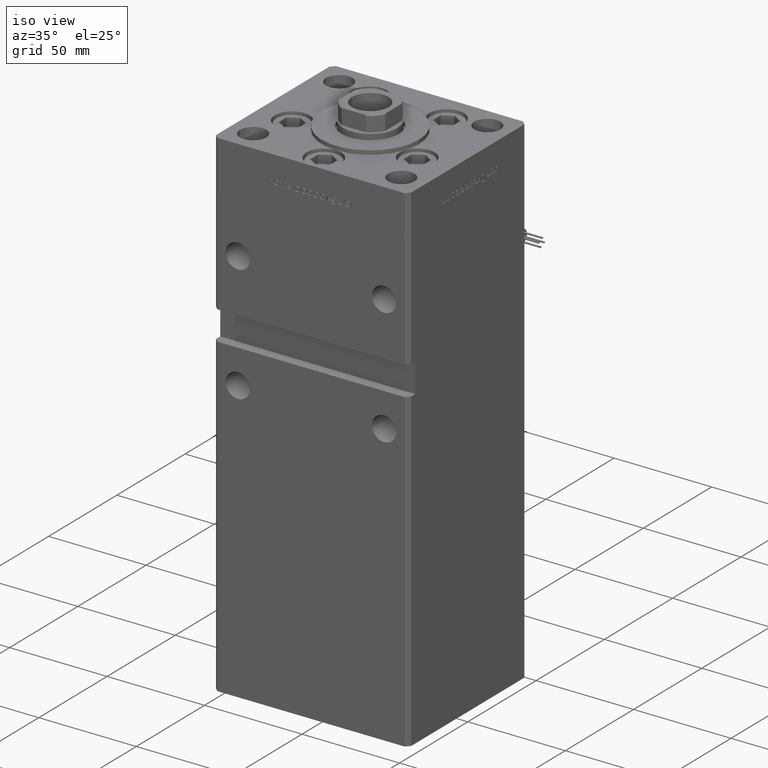
[diagram: clean part render]
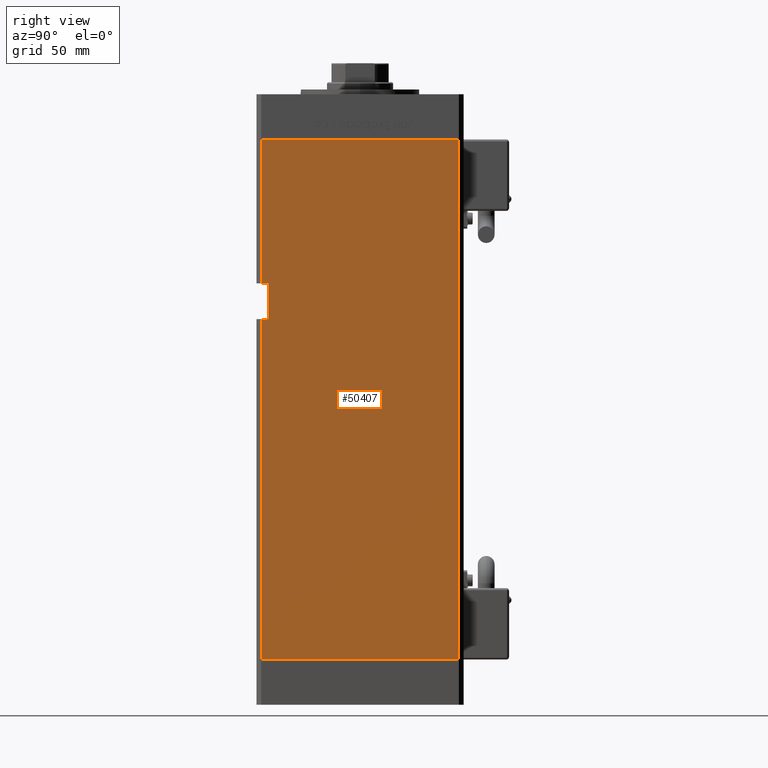
[diagram: tour spotlight — one face highlighted and labeled with its STEP entity id]
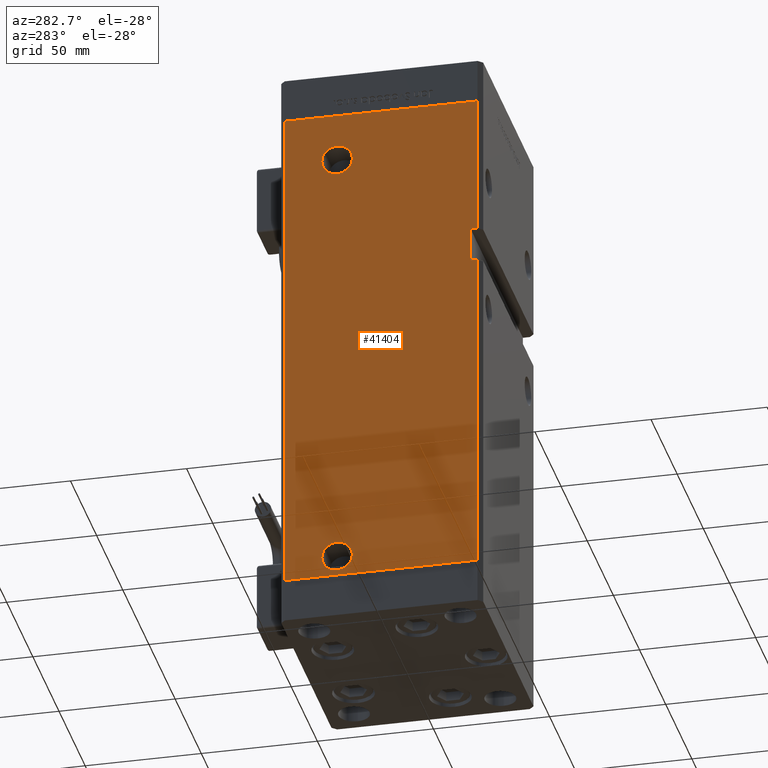
[diagram: tour spotlight — one face highlighted and labeled with its STEP entity id]
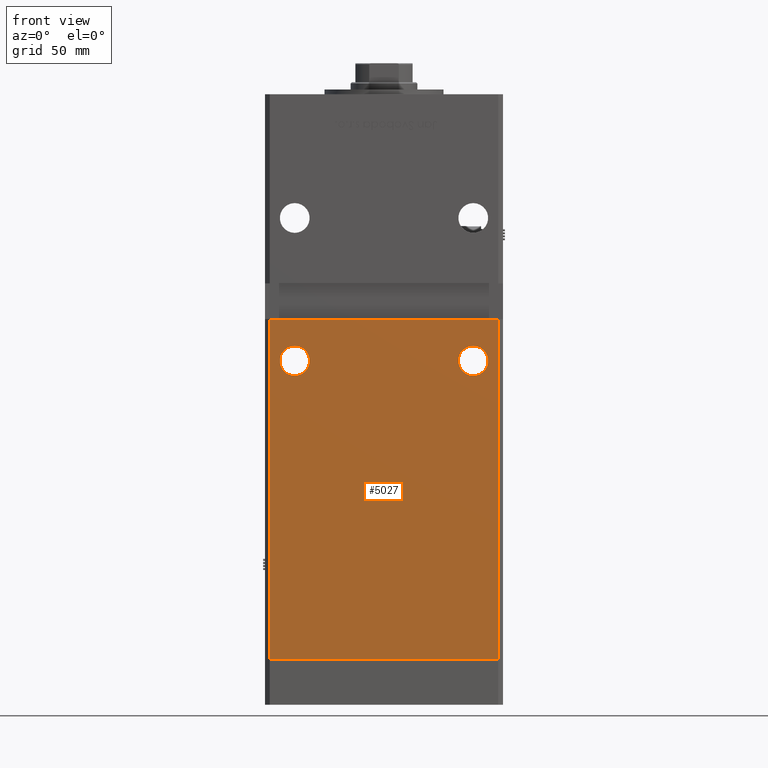
[diagram: tour spotlight — one face highlighted and labeled with its STEP entity id]
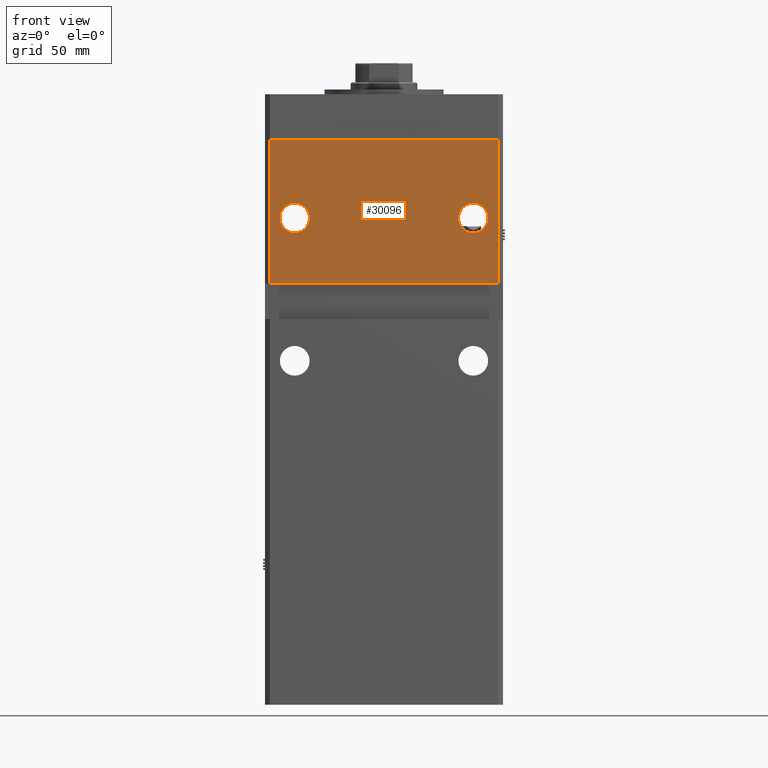
[diagram: tour spotlight — one face highlighted and labeled with its STEP entity id]
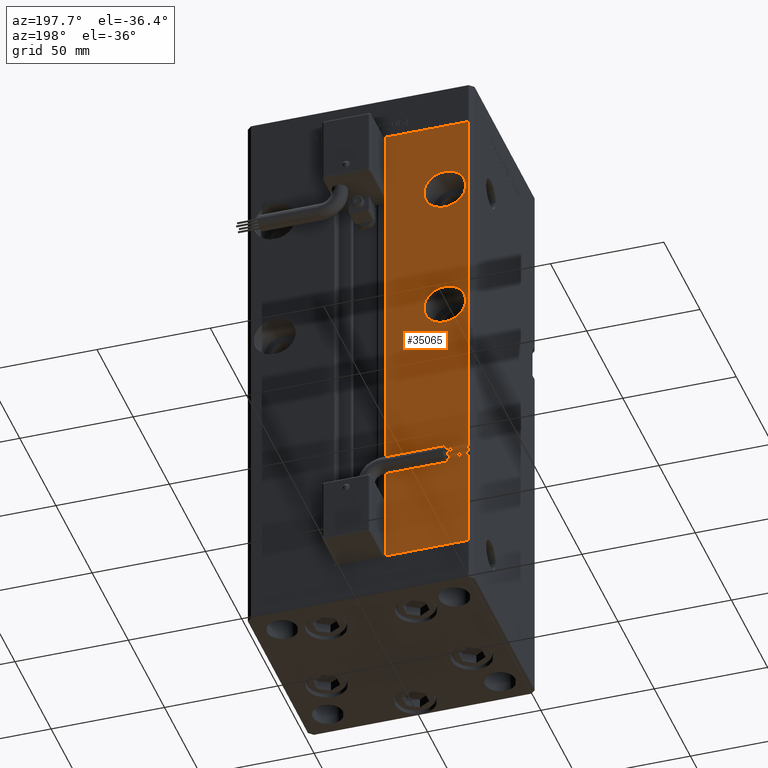
[diagram: tour spotlight — one face highlighted and labeled with its STEP entity id]
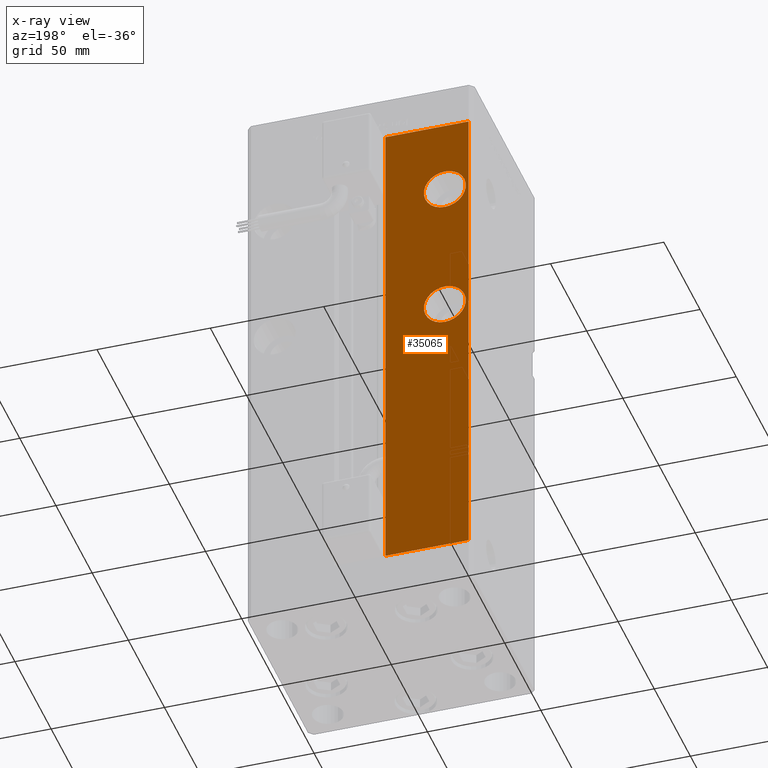
[diagram: x-ray of the same camera — body ghosted, this tour face saturated]
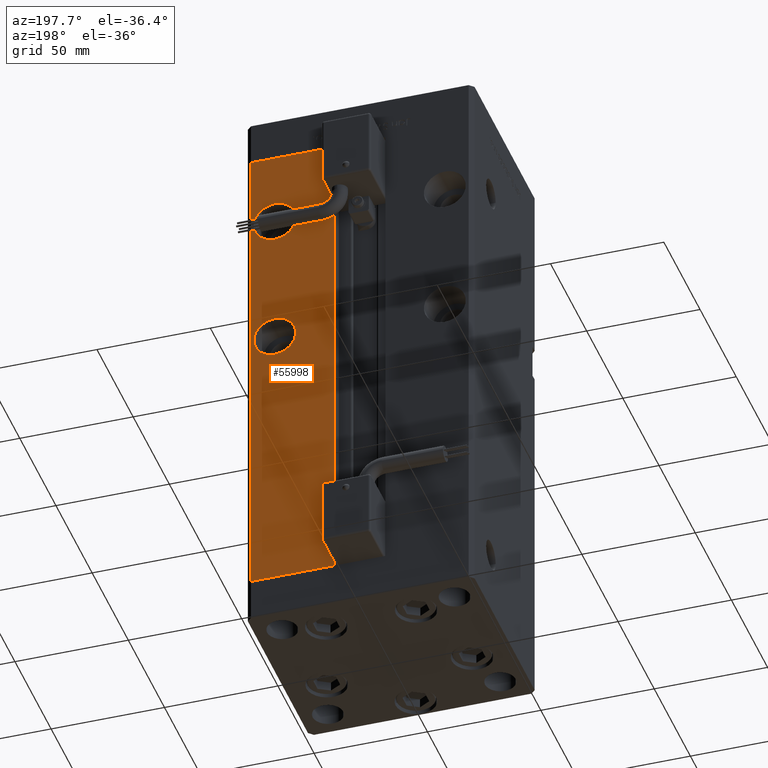
[diagram: tour spotlight — one face highlighted and labeled with its STEP entity id]
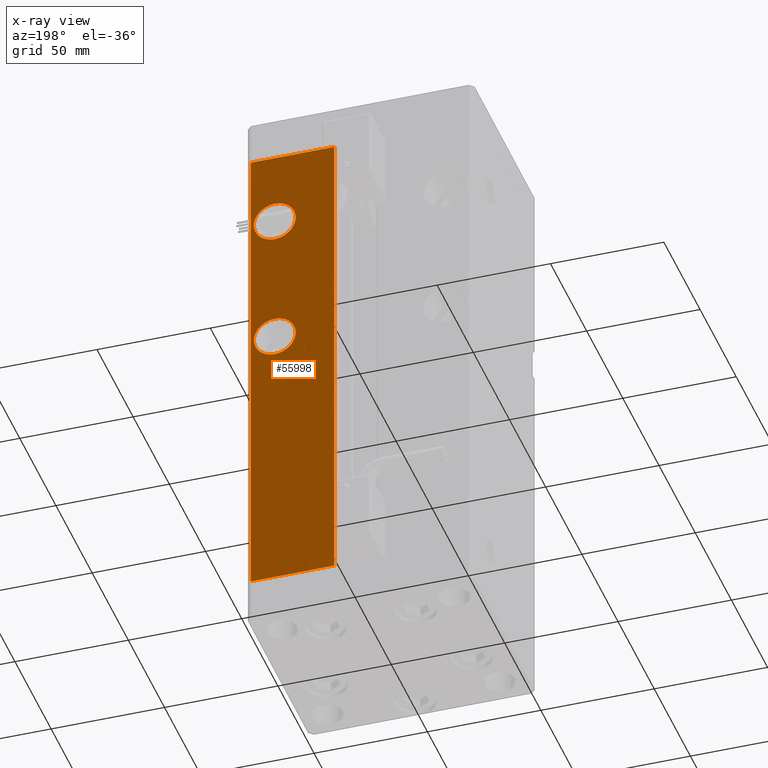
[diagram: x-ray of the same camera — body ghosted, this tour face saturated]
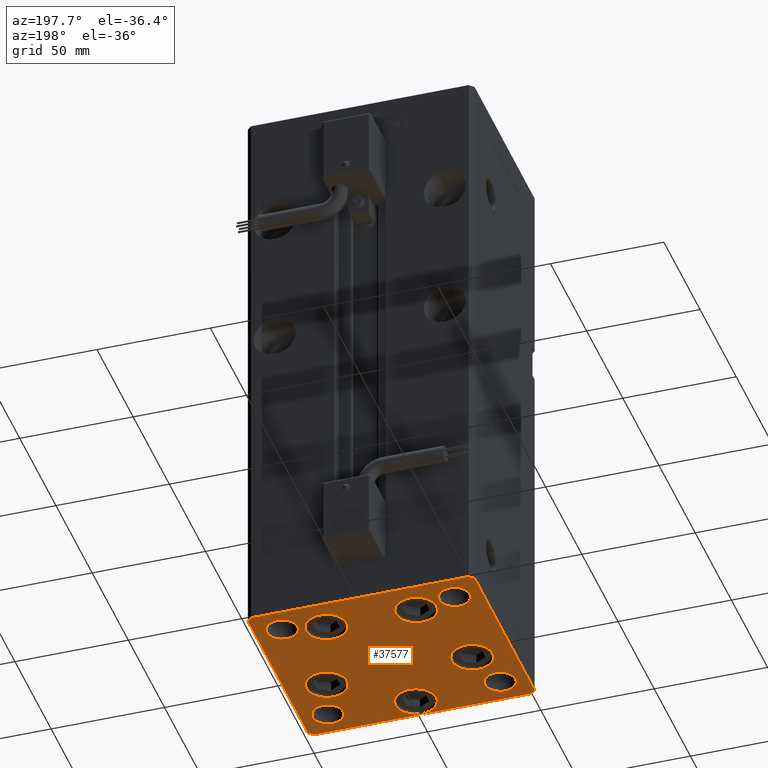
[diagram: tour spotlight — one face highlighted and labeled with its STEP entity id]
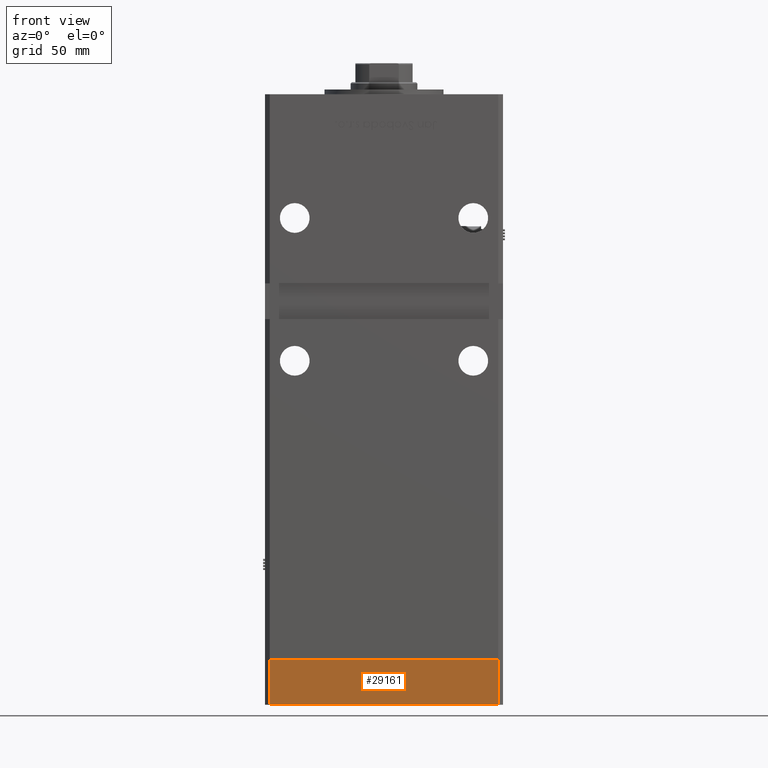
[diagram: tour spotlight — one face highlighted and labeled with its STEP entity id]
A machine part: a face-by-face anatomy tour. The part has 1416 B-rep faces; the first image is the clean iso view, then the 8 largest visible faces are spotlighted one at a time (largest first), each with its STEP entity span.

Face 1 — right view, entity #50407. In plain terms, the highlighted planar face has unit normal (1, -0, 0).
Definition (entity closure, byte-faithful):
#722 = AXIS2_PLACEMENT_3D ( 'NONE', #21497, #34862, #44230 ) ;
#1108 = EDGE_CURVE ( 'NONE', #7873, #31038, #21064, .T. ) ;
#1882 = CARTESIAN_POINT ( 'NONE',  ( 49.99999999999998579, -38.50000000000000000, 158.0000000000000000 ) ) ;
#2019 = VERTEX_POINT ( 'NONE', #33250 ) ;
#2156 = CARTESIAN_POINT ( 'NONE',  ( 50.00000000000001421, 41.49999999999999289, 0.000000000000000000 ) ) ;
#3017 = ORIENTED_EDGE ( 'NONE', *, *, #33198, .F. ) ;
#3345 = ORIENTED_EDGE ( 'NONE', *, *, #39298, .T. ) ;
#5177 = EDGE_LOOP ( 'NONE', ( #49502, #3345, #40422, #17053, #39110, #35376, #3017, #53300 ) ) ;
#5317 = DIRECTION ( 'NONE',  ( -0.000000000000000000, -1.000000000000000000, -0.000000000000000000 ) ) ;
#7873 = VERTEX_POINT ( 'NONE', #9010 ) ;
#7940 = VERTEX_POINT ( 'NONE', #2156 ) ;
#9010 = CARTESIAN_POINT ( 'NONE',  ( 49.99999999999998579, -38.49999999999999289, 143.0000000000000284 ) ) ;
#9256 = LINE ( 'NONE', #39694, #20644 ) ;
#10255 = DIRECTION ( 'NONE',  ( -0.000000000000000000, -0.000000000000000000, -1.000000000000000000 ) ) ;
#10455 = LINE ( 'NONE', #53687, #35919 ) ;
#14294 = CARTESIAN_POINT ( 'NONE',  ( 50.00000000000001421, 41.49999999999999289, 218.5000000000000000 ) ) ;
#16516 = DIRECTION ( 'NONE',  ( -0.000000000000000000, -0.000000000000000000, 1.000000000000000000 ) ) ;
#17053 = ORIENTED_EDGE ( 'NONE', *, *, #38847, .F. ) ;
#17669 = LINE ( 'NONE', #40141, #34495 ) ;
#19183 = VERTEX_POINT ( 'NONE', #33567 ) ;
#20644 = VECTOR ( 'NONE', #48775, 1000.000000000000000 ) ;
#20883 = EDGE_CURVE ( 'NONE', #7873, #39343, #45358, .T. ) ;
#21064 = LINE ( 'NONE', #42410, #44752 ) ;
#21497 = CARTESIAN_POINT ( 'NONE',  ( 50.00000000000001421, 41.49999999999999289, 218.5000000000000000 ) ) ;
#24778 = EDGE_CURVE ( 'NONE', #26834, #2019, #9256, .T. ) ;
#26313 = PLANE ( 'NONE',  #722 ) ;
#26834 = VERTEX_POINT ( 'NONE', #14294 ) ;
#26987 = CARTESIAN_POINT ( 'NONE',  ( 49.99999999999998579, -41.49999999999999289, 158.0000000000000000 ) ) ;
#27319 = CARTESIAN_POINT ( 'NONE',  ( 49.99999999999998579, -41.49999999999999289, 218.5000000000000000 ) ) ;
#28023 = LINE ( 'NONE', #36011, #51775 ) ;
#31038 = VERTEX_POINT ( 'NONE', #33789 ) ;
#32093 = EDGE_CURVE ( 'NONE', #2019, #40324, #28023, .T. ) ;
#33131 = CARTESIAN_POINT ( 'NONE',  ( 49.99999999999998579, -38.50000000000000000, 143.0000000000000284 ) ) ;
#33198 = EDGE_CURVE ( 'NONE', #31038, #40324, #44273, .T. ) ;
#33250 = CARTESIAN_POINT ( 'NONE',  ( 49.99999999999998579, -41.49999999999999289, 218.5000000000000000 ) ) ;
#33567 = CARTESIAN_POINT ( 'NONE',  ( 49.99999999999998579, -41.49999999999999289, 0.000000000000000000 ) ) ;
#33789 = CARTESIAN_POINT ( 'NONE',  ( 49.99999999999998579, -38.50000000000000000, 158.0000000000000000 ) ) ;
#34115 = VECTOR ( 'NONE', #10255, 1000.000000000000000 ) ;
#34495 = VECTOR ( 'NONE', #39289, 1000.000000000000000 ) ;
#34862 = DIRECTION ( 'NONE',  ( 1.000000000000000000, -3.344045254895050480E-16, 0.000000000000000000 ) ) ;
#35376 = ORIENTED_EDGE ( 'NONE', *, *, #32093, .T. ) ;
#35919 = VECTOR ( 'NONE', #45440, 1000.000000000000000 ) ;
#36011 = CARTESIAN_POINT ( 'NONE',  ( 49.99999999999998579, -41.49999999999999289, 218.5000000000000000 ) ) ;
#38847 = EDGE_CURVE ( 'NONE', #26834, #7940, #10455, .T. ) ;
#39110 = ORIENTED_EDGE ( 'NONE', *, *, #24778, .T. ) ;
#39285 = LINE ( 'NONE', #27319, #34115 ) ;
#39289 = DIRECTION ( 'NONE',  ( -3.344045254895050973E-16, -1.000000000000000000, 0.000000000000000000 ) ) ;
#39298 = EDGE_CURVE ( 'NONE', #39343, #19183, #39285, .T. ) ;
#39343 = VERTEX_POINT ( 'NONE', #54327 ) ;
#39694 = CARTESIAN_POINT ( 'NONE',  ( 50.00000000000001421, 41.49999999999999289, 218.5000000000000000 ) ) ;
#40141 = CARTESIAN_POINT ( 'NONE',  ( 50.00000000000001421, 41.49999999999999289, 0.000000000000000000 ) ) ;
#40324 = VERTEX_POINT ( 'NONE', #26987 ) ;
#40422 = ORIENTED_EDGE ( 'NONE', *, *, #54566, .F. ) ;
#40885 = VECTOR ( 'NONE', #5317, 1000.000000000000000 ) ;
#41370 = DIRECTION ( 'NONE',  ( -0.000000000000000000, -1.000000000000000000, -0.000000000000000000 ) ) ;
#42410 = CARTESIAN_POINT ( 'NONE',  ( 49.99999999999998579, -38.50000000000000000, 158.0000000000000000 ) ) ;
#43953 = FACE_OUTER_BOUND ( 'NONE', #5177, .T. ) ;
#44230 = DIRECTION ( 'NONE',  ( 3.344045254895050480E-16, 1.000000000000000000, 0.000000000000000000 ) ) ;
#44273 = LINE ( 'NONE', #1882, #40885 ) ;
#44752 = VECTOR ( 'NONE', #16516, 1000.000000000000000 ) ;
#45358 = LINE ( 'NONE', #33131, #55114 ) ;
#45440 = DIRECTION ( 'NONE',  ( -0.000000000000000000, -0.000000000000000000, -1.000000000000000000 ) ) ;
#48775 = DIRECTION ( 'NONE',  ( -3.344045254895050973E-16, -1.000000000000000000, 0.000000000000000000 ) ) ;
#49502 = ORIENTED_EDGE ( 'NONE', *, *, #20883, .T. ) ;
#50407 = ADVANCED_FACE ( 'NONE', ( #43953 ), #26313, .T. ) ;
#51775 = VECTOR ( 'NONE', #53359, 1000.000000000000000 ) ;
#53300 = ORIENTED_EDGE ( 'NONE', *, *, #1108, .F. ) ;
#53359 = DIRECTION ( 'NONE',  ( -0.000000000000000000, -0.000000000000000000, -1.000000000000000000 ) ) ;
#53687 = CARTESIAN_POINT ( 'NONE',  ( 50.00000000000001421, 41.49999999999999289, 218.5000000000000000 ) ) ;
#54327 = CARTESIAN_POINT ( 'NONE',  ( 49.99999999999998579, -41.49999999999999289, 143.0000000000000284 ) ) ;
#54566 = EDGE_CURVE ( 'NONE', #7940, #19183, #17669, .T. ) ;
#55114 = VECTOR ( 'NONE', #41370, 1000.000000000000000 ) ;

Face 2 — auxiliary view, entity #41404. In plain terms, the highlighted planar face has unit normal (1, 0, 0).
Definition (entity closure, byte-faithful):
#721 = DIRECTION ( 'NONE',  ( 0.000000000000000000, -1.000000000000000000, 0.000000000000000000 ) ) ;
#844 = DIRECTION ( 'NONE',  ( -0.000000000000000000, -1.000000000000000000, -0.000000000000000000 ) ) ;
#2108 = DIRECTION ( 'NONE',  ( 3.344045254895050973E-16, -1.000000000000000000, 0.000000000000000000 ) ) ;
#2134 = DIRECTION ( 'NONE',  ( 0.000000000000000000, -1.000000000000000000, 0.000000000000000000 ) ) ;
#2392 = AXIS2_PLACEMENT_3D ( 'NONE', #54804, #20689, #37471 ) ;
#3285 = EDGE_CURVE ( 'NONE', #47523, #8045, #19079, .T. ) ;
#4029 = ORIENTED_EDGE ( 'NONE', *, *, #25237, .T. ) ;
#4424 = DIRECTION ( 'NONE',  ( -1.000000000000000000, -2.275047181608927644E-16, 0.000000000000000000 ) ) ;
#4509 = DIRECTION ( 'NONE',  ( -0.000000000000000000, -1.000000000000000000, -0.000000000000000000 ) ) ;
#4636 = EDGE_CURVE ( 'NONE', #54822, #16776, #23720, .T. ) ;
#4972 = VERTEX_POINT ( 'NONE', #41792 ) ;
#5014 = VERTEX_POINT ( 'NONE', #37528 ) ;
#5028 = CARTESIAN_POINT ( 'NONE',  ( -50.00000000000001421, 41.49999999999999289, 218.5000000000000000 ) ) ;
#5040 = AXIS2_PLACEMENT_3D ( 'NONE', #36281, #10676, #19480 ) ;
#5450 = CARTESIAN_POINT ( 'NONE',  ( -50.00000000000000711, 19.00000000000000000, 9.000000000000007105 ) ) ;
#6399 = DIRECTION ( 'NONE',  ( -1.000000000000000000, -2.275047181608927644E-16, 0.000000000000000000 ) ) ;
#6991 = CARTESIAN_POINT ( 'NONE',  ( -49.99999999999998579, -41.49999999999999289, 0.000000000000000000 ) ) ;
#7001 = ORIENTED_EDGE ( 'NONE', *, *, #25659, .F. ) ;
#7914 = CIRCLE ( 'NONE', #50586, 6.580000000000016058 ) ;
#7950 = FACE_OUTER_BOUND ( 'NONE', #8662, .T. ) ;
#8045 = VERTEX_POINT ( 'NONE', #6991 ) ;
#8543 = VECTOR ( 'NONE', #2108, 1000.000000000000000 ) ;
#8662 = EDGE_LOOP ( 'NONE', ( #7001, #22511, #37777, #54949, #45521, #49721, #4029, #44566 ) ) ;
#8738 = DIRECTION ( 'NONE',  ( -0.000000000000000000, -0.000000000000000000, -1.000000000000000000 ) ) ;
#10192 = DIRECTION ( 'NONE',  ( 0.000000000000000000, 0.000000000000000000, -1.000000000000000000 ) ) ;
#10544 = DIRECTION ( 'NONE',  ( 0.000000000000000000, -1.000000000000000000, 0.000000000000000000 ) ) ;
#10676 = DIRECTION ( 'NONE',  ( -1.000000000000000000, -2.275047181608927644E-16, 0.000000000000000000 ) ) ;
#10829 = EDGE_LOOP ( 'NONE', ( #48364, #19522 ) ) ;
#13787 = CARTESIAN_POINT ( 'NONE',  ( -49.99999999999998579, -41.49999999999999289, 218.5000000000000000 ) ) ;
#16202 = VERTEX_POINT ( 'NONE', #29156 ) ;
#16776 = VERTEX_POINT ( 'NONE', #31291 ) ;
#17284 = CARTESIAN_POINT ( 'NONE',  ( -50.00000000000001421, 41.49999999999999289, 218.5000000000000000 ) ) ;
#17547 = CARTESIAN_POINT ( 'NONE',  ( -49.99999999999998579, -41.49999999999999289, 218.5000000000000000 ) ) ;
#18327 = DIRECTION ( 'NONE',  ( -0.000000000000000000, -0.000000000000000000, -1.000000000000000000 ) ) ;
#18904 = VECTOR ( 'NONE', #8738, 1000.000000000000000 ) ;
#19006 = LINE ( 'NONE', #36365, #27229 ) ;
#19079 = LINE ( 'NONE', #40705, #31211 ) ;
#19421 = EDGE_CURVE ( 'NONE', #55128, #5014, #53115, .T. ) ;
#19480 = DIRECTION ( 'NONE',  ( 0.000000000000000000, -1.000000000000000000, 0.000000000000000000 ) ) ;
#19522 = ORIENTED_EDGE ( 'NONE', *, *, #43088, .F. ) ;
#20416 = VERTEX_POINT ( 'NONE', #47793 ) ;
#20689 = DIRECTION ( 'NONE',  ( 1.000000000000000000, 3.344045254895050480E-16, -0.000000000000000000 ) ) ;
#22175 = CARTESIAN_POINT ( 'NONE',  ( -49.99999999999998579, -41.49999999999999289, 158.0000000000000000 ) ) ;
#22407 = CARTESIAN_POINT ( 'NONE',  ( -49.99999999999998579, -38.50000000000000000, 143.0000000000000284 ) ) ;
#22511 = ORIENTED_EDGE ( 'NONE', *, *, #19421, .F. ) ;
#23301 = VERTEX_POINT ( 'NONE', #48620 ) ;
#23398 = AXIS2_PLACEMENT_3D ( 'NONE', #26303, #4424, #721 ) ;
#23720 = LINE ( 'NONE', #41068, #8543 ) ;
#25237 = EDGE_CURVE ( 'NONE', #54822, #47523, #34644, .T. ) ;
#25659 = EDGE_CURVE ( 'NONE', #5014, #8045, #35132, .T. ) ;
#26303 = CARTESIAN_POINT ( 'NONE',  ( -50.00000000000000711, 19.00000000000000000, 9.000000000000007105 ) ) ;
#26923 = VECTOR ( 'NONE', #4509, 1000.000000000000000 ) ;
#27229 = VECTOR ( 'NONE', #844, 1000.000000000000000 ) ;
#27691 = CIRCLE ( 'NONE', #5040, 6.580000000000016058 ) ;
#29156 = CARTESIAN_POINT ( 'NONE',  ( -50.00000000000000711, 12.41999999999999638, 9.000000000000007105 ) ) ;
#29169 = EDGE_CURVE ( 'NONE', #16776, #33584, #30927, .T. ) ;
#30927 = LINE ( 'NONE', #17547, #18904 ) ;
#31211 = VECTOR ( 'NONE', #45255, 1000.000000000000000 ) ;
#31260 = VERTEX_POINT ( 'NONE', #32578 ) ;
#31291 = CARTESIAN_POINT ( 'NONE',  ( -49.99999999999998579, -41.49999999999999289, 218.5000000000000000 ) ) ;
#32281 = CARTESIAN_POINT ( 'NONE',  ( -50.00000000000000711, 19.00000000000000000, 197.5000000000000000 ) ) ;
#32578 = CARTESIAN_POINT ( 'NONE',  ( -50.00000000000000711, 25.58000000000000185, 9.000000000000007105 ) ) ;
#32610 = CARTESIAN_POINT ( 'NONE',  ( -49.99999999999998579, -38.50000000000000000, 143.0000000000000284 ) ) ;
#33584 = VERTEX_POINT ( 'NONE', #22175 ) ;
#34644 = LINE ( 'NONE', #17284, #46982 ) ;
#35132 = LINE ( 'NONE', #13787, #50608 ) ;
#36281 = CARTESIAN_POINT ( 'NONE',  ( -50.00000000000000711, 19.00000000000000000, 197.5000000000000000 ) ) ;
#36365 = CARTESIAN_POINT ( 'NONE',  ( -49.99999999999998579, -38.50000000000000000, 158.0000000000000000 ) ) ;
#36918 = LINE ( 'NONE', #49158, #52243 ) ;
#37096 = EDGE_CURVE ( 'NONE', #4972, #33584, #19006, .T. ) ;
#37471 = DIRECTION ( 'NONE',  ( -3.344045254895050480E-16, 1.000000000000000000, 0.000000000000000000 ) ) ;
#37528 = CARTESIAN_POINT ( 'NONE',  ( -49.99999999999998579, -41.49999999999999289, 143.0000000000000284 ) ) ;
#37777 = ORIENTED_EDGE ( 'NONE', *, *, #39538, .F. ) ;
#39538 = EDGE_CURVE ( 'NONE', #4972, #55128, #36918, .T. ) ;
#39747 = EDGE_CURVE ( 'NONE', #20416, #23301, #27691, .T. ) ;
#40419 = DIRECTION ( 'NONE',  ( -1.000000000000000000, -2.275047181608927644E-16, 0.000000000000000000 ) ) ;
#40705 = CARTESIAN_POINT ( 'NONE',  ( -50.00000000000001421, 41.49999999999999289, 0.000000000000000000 ) ) ;
#41068 = CARTESIAN_POINT ( 'NONE',  ( -50.00000000000001421, 41.49999999999999289, 218.5000000000000000 ) ) ;
#41404 = ADVANCED_FACE ( 'NONE', ( #7950, #42653, #50554 ), #42299, .F. ) ;
#41792 = CARTESIAN_POINT ( 'NONE',  ( -49.99999999999998579, -38.50000000000000000, 158.0000000000000000 ) ) ;
#42299 = PLANE ( 'NONE',  #2392 ) ;
#42653 = FACE_BOUND ( 'NONE', #10829, .T. ) ;
#43088 = EDGE_CURVE ( 'NONE', #31260, #16202, #52235, .T. ) ;
#44566 = ORIENTED_EDGE ( 'NONE', *, *, #3285, .T. ) ;
#44944 = ORIENTED_EDGE ( 'NONE', *, *, #47695, .F. ) ;
#45255 = DIRECTION ( 'NONE',  ( 3.344045254895050973E-16, -1.000000000000000000, 0.000000000000000000 ) ) ;
#45521 = ORIENTED_EDGE ( 'NONE', *, *, #29169, .F. ) ;
#46147 = EDGE_LOOP ( 'NONE', ( #54773, #44944 ) ) ;
#46982 = VECTOR ( 'NONE', #51713, 1000.000000000000000 ) ;
#47523 = VERTEX_POINT ( 'NONE', #52217 ) ;
#47695 = EDGE_CURVE ( 'NONE', #23301, #20416, #7914, .T. ) ;
#47793 = CARTESIAN_POINT ( 'NONE',  ( -50.00000000000000711, 12.41999999999998394, 197.5000000000000000 ) ) ;
#48364 = ORIENTED_EDGE ( 'NONE', *, *, #49726, .F. ) ;
#48620 = CARTESIAN_POINT ( 'NONE',  ( -50.00000000000000711, 25.58000000000001606, 197.5000000000000000 ) ) ;
#49158 = CARTESIAN_POINT ( 'NONE',  ( -49.99999999999998579, -38.50000000000000000, 158.0000000000000000 ) ) ;
#49721 = ORIENTED_EDGE ( 'NONE', *, *, #4636, .F. ) ;
#49726 = EDGE_CURVE ( 'NONE', #16202, #31260, #49755, .T. ) ;
#49755 = CIRCLE ( 'NONE', #23398, 6.580000000000002736 ) ;
#50554 = FACE_BOUND ( 'NONE', #46147, .T. ) ;
#50586 = AXIS2_PLACEMENT_3D ( 'NONE', #32281, #6399, #2134 ) ;
#50608 = VECTOR ( 'NONE', #18327, 1000.000000000000000 ) ;
#51713 = DIRECTION ( 'NONE',  ( -0.000000000000000000, -0.000000000000000000, -1.000000000000000000 ) ) ;
#52217 = CARTESIAN_POINT ( 'NONE',  ( -50.00000000000001421, 41.49999999999999289, 0.000000000000000000 ) ) ;
#52235 = CIRCLE ( 'NONE', #55890, 6.580000000000002736 ) ;
#52243 = VECTOR ( 'NONE', #10192, 1000.000000000000000 ) ;
#53115 = LINE ( 'NONE', #22407, #26923 ) ;
#54773 = ORIENTED_EDGE ( 'NONE', *, *, #39747, .F. ) ;
#54804 = CARTESIAN_POINT ( 'NONE',  ( -50.00000000000001421, 41.49999999999999289, 218.5000000000000000 ) ) ;
#54822 = VERTEX_POINT ( 'NONE', #5028 ) ;
#54949 = ORIENTED_EDGE ( 'NONE', *, *, #37096, .T. ) ;
#55128 = VERTEX_POINT ( 'NONE', #32610 ) ;
#55890 = AXIS2_PLACEMENT_3D ( 'NONE', #5450, #40419, #10544 ) ;

Face 3 — front view, entity #5027. In plain terms, the highlighted planar face has unit normal (0, 1, 0).
Definition (entity closure, byte-faithful):
#183 = VECTOR ( 'NONE', #53564, 1000.000000000000000 ) ;
#218 = LINE ( 'NONE', #17845, #2454 ) ;
#457 = EDGE_CURVE ( 'NONE', #37136, #14238, #986, .T. ) ;
#688 = EDGE_LOOP ( 'NONE', ( #23389, #25318 ) ) ;
#986 = LINE ( 'NONE', #22583, #183 ) ;
#2454 = VECTOR ( 'NONE', #9028, 1000.000000000000000 ) ;
#3534 = EDGE_CURVE ( 'NONE', #37136, #12257, #45475, .T. ) ;
#4411 = AXIS2_PLACEMENT_3D ( 'NONE', #13944, #27020, #5973 ) ;
#5027 = ADVANCED_FACE ( 'NONE', ( #45494, #15623, #41510 ), #7379, .F. ) ;
#5973 = DIRECTION ( 'NONE',  ( 0.000000000000000000, 0.000000000000000000, 1.000000000000000000 ) ) ;
#6232 = AXIS2_PLACEMENT_3D ( 'NONE', #54027, #39843, #54602 ) ;
#6794 = AXIS2_PLACEMENT_3D ( 'NONE', #41572, #32762, #29334 ) ;
#7379 = PLANE ( 'NONE',  #43946 ) ;
#7703 = DIRECTION ( 'NONE',  ( 1.000000000000000000, 0.000000000000000000, 0.000000000000000000 ) ) ;
#8020 = CIRCLE ( 'NONE', #4411, 6.250000000000005329 ) ;
#8723 = VERTEX_POINT ( 'NONE', #24419 ) ;
#8936 = CARTESIAN_POINT ( 'NONE',  ( -37.50000000000000000, -43.50000000000000000, 131.7500000000000000 ) ) ;
#9028 = DIRECTION ( 'NONE',  ( -0.000000000000000000, -0.000000000000000000, -1.000000000000000000 ) ) ;
#9470 = CARTESIAN_POINT ( 'NONE',  ( 37.50000000000000000, -43.50000000000000000, 131.7500000000000000 ) ) ;
#11165 = VERTEX_POINT ( 'NONE', #9470 ) ;
#11335 = CARTESIAN_POINT ( 'NONE',  ( -47.99999999999998579, -43.50000000000000000, 218.5000000000000000 ) ) ;
#12257 = VERTEX_POINT ( 'NONE', #44948 ) ;
#12545 = CARTESIAN_POINT ( 'NONE',  ( 37.50000000000000000, -43.50000000000000000, 119.2500000000000000 ) ) ;
#13944 = CARTESIAN_POINT ( 'NONE',  ( 37.50000000000000000, -43.50000000000000000, 125.5000000000000000 ) ) ;
#14238 = VERTEX_POINT ( 'NONE', #42012 ) ;
#15469 = CIRCLE ( 'NONE', #50898, 6.250000000000005329 ) ;
#15623 = FACE_BOUND ( 'NONE', #688, .T. ) ;
#16284 = ORIENTED_EDGE ( 'NONE', *, *, #44571, .T. ) ;
#16566 = EDGE_CURVE ( 'NONE', #16686, #11165, #50400, .T. ) ;
#16686 = VERTEX_POINT ( 'NONE', #12545 ) ;
#16788 = CARTESIAN_POINT ( 'NONE',  ( -37.50000000000000000, -43.50000000000000000, 119.2500000000000000 ) ) ;
#17845 = CARTESIAN_POINT ( 'NONE',  ( 47.99999999999998579, -43.50000000000000000, 218.5000000000000000 ) ) ;
#19016 = DIRECTION ( 'NONE',  ( -0.000000000000000000, -0.000000000000000000, -1.000000000000000000 ) ) ;
#22583 = CARTESIAN_POINT ( 'NONE',  ( -49.99999999999998579, -43.50000000000000000, 143.0000000000000284 ) ) ;
#23389 = ORIENTED_EDGE ( 'NONE', *, *, #51135, .T. ) ;
#24419 = CARTESIAN_POINT ( 'NONE',  ( 47.99999999999998579, -43.50000000000000000, 0.000000000000000000 ) ) ;
#24621 = EDGE_LOOP ( 'NONE', ( #27874, #34142 ) ) ;
#25310 = EDGE_CURVE ( 'NONE', #14238, #8723, #218, .T. ) ;
#25318 = ORIENTED_EDGE ( 'NONE', *, *, #16566, .T. ) ;
#26223 = CARTESIAN_POINT ( 'NONE',  ( -37.50000000000000000, -43.50000000000000000, 125.5000000000000000 ) ) ;
#27020 = DIRECTION ( 'NONE',  ( 0.000000000000000000, 1.000000000000000000, 0.000000000000000000 ) ) ;
#27874 = ORIENTED_EDGE ( 'NONE', *, *, #52007, .T. ) ;
#28420 = DIRECTION ( 'NONE',  ( 0.000000000000000000, 1.000000000000000000, 0.000000000000000000 ) ) ;
#28464 = EDGE_LOOP ( 'NONE', ( #43809, #35948, #30310, #16284 ) ) ;
#29334 = DIRECTION ( 'NONE',  ( 0.000000000000000000, 0.000000000000000000, 1.000000000000000000 ) ) ;
#29673 = DIRECTION ( 'NONE',  ( 0.000000000000000000, 0.000000000000000000, 1.000000000000000000 ) ) ;
#30310 = ORIENTED_EDGE ( 'NONE', *, *, #3534, .T. ) ;
#32762 = DIRECTION ( 'NONE',  ( 0.000000000000000000, 1.000000000000000000, 0.000000000000000000 ) ) ;
#34142 = ORIENTED_EDGE ( 'NONE', *, *, #34369, .T. ) ;
#34369 = EDGE_CURVE ( 'NONE', #37850, #43718, #15469, .T. ) ;
#35948 = ORIENTED_EDGE ( 'NONE', *, *, #457, .F. ) ;
#36160 = CARTESIAN_POINT ( 'NONE',  ( -47.99999999999998579, -43.50000000000000000, 0.000000000000000000 ) ) ;
#37136 = VERTEX_POINT ( 'NONE', #42048 ) ;
#37248 = DIRECTION ( 'NONE',  ( 0.000000000000000000, -0.000000000000000000, 1.000000000000000000 ) ) ;
#37850 = VERTEX_POINT ( 'NONE', #16788 ) ;
#38758 = DIRECTION ( 'NONE',  ( 0.000000000000000000, 1.000000000000000000, 0.000000000000000000 ) ) ;
#38964 = CIRCLE ( 'NONE', #6232, 6.250000000000005329 ) ;
#39843 = DIRECTION ( 'NONE',  ( 0.000000000000000000, 1.000000000000000000, 0.000000000000000000 ) ) ;
#40428 = LINE ( 'NONE', #36160, #46843 ) ;
#41510 = FACE_OUTER_BOUND ( 'NONE', #28464, .T. ) ;
#41572 = CARTESIAN_POINT ( 'NONE',  ( 37.50000000000000000, -43.50000000000000000, 125.5000000000000000 ) ) ;
#42012 = CARTESIAN_POINT ( 'NONE',  ( 47.99999999999998579, -43.50000000000000000, 143.0000000000000284 ) ) ;
#42048 = CARTESIAN_POINT ( 'NONE',  ( -47.99999999999998579, -43.50000000000000000, 143.0000000000000284 ) ) ;
#43718 = VERTEX_POINT ( 'NONE', #8936 ) ;
#43809 = ORIENTED_EDGE ( 'NONE', *, *, #25310, .F. ) ;
#43946 = AXIS2_PLACEMENT_3D ( 'NONE', #54014, #28420, #37248 ) ;
#44571 = EDGE_CURVE ( 'NONE', #12257, #8723, #40428, .T. ) ;
#44842 = VECTOR ( 'NONE', #19016, 1000.000000000000000 ) ;
#44948 = CARTESIAN_POINT ( 'NONE',  ( -47.99999999999998579, -43.50000000000000000, 0.000000000000000000 ) ) ;
#45475 = LINE ( 'NONE', #11335, #44842 ) ;
#45494 = FACE_BOUND ( 'NONE', #24621, .T. ) ;
#46843 = VECTOR ( 'NONE', #7703, 1000.000000000000000 ) ;
#50400 = CIRCLE ( 'NONE', #6794, 6.250000000000005329 ) ;
#50898 = AXIS2_PLACEMENT_3D ( 'NONE', #26223, #38758, #29673 ) ;
#51135 = EDGE_CURVE ( 'NONE', #11165, #16686, #8020, .T. ) ;
#52007 = EDGE_CURVE ( 'NONE', #43718, #37850, #38964, .T. ) ;
#53564 = DIRECTION ( 'NONE',  ( 1.000000000000000000, 0.000000000000000000, 0.000000000000000000 ) ) ;
#54014 = CARTESIAN_POINT ( 'NONE',  ( -47.99999999999998579, -43.50000000000000000, 218.5000000000000000 ) ) ;
#54027 = CARTESIAN_POINT ( 'NONE',  ( -37.50000000000000000, -43.50000000000000000, 125.5000000000000000 ) ) ;
#54602 = DIRECTION ( 'NONE',  ( 0.000000000000000000, 0.000000000000000000, 1.000000000000000000 ) ) ;

Face 4 — front view, entity #30096. In plain terms, the highlighted planar face has unit normal (0, 1, 0).
Definition (entity closure, byte-faithful):
#753 = CARTESIAN_POINT ( 'NONE',  ( 47.99999999999998579, -43.50000000000000000, 158.0000000000000000 ) ) ;
#1510 = AXIS2_PLACEMENT_3D ( 'NONE', #10106, #34119, #30120 ) ;
#2239 = EDGE_LOOP ( 'NONE', ( #20362, #44874, #3337, #46141 ) ) ;
#3337 = ORIENTED_EDGE ( 'NONE', *, *, #54811, .F. ) ;
#3612 = VECTOR ( 'NONE', #35176, 1000.000000000000000 ) ;
#5696 = EDGE_LOOP ( 'NONE', ( #38089, #32149 ) ) ;
#6387 = LINE ( 'NONE', #6665, #32375 ) ;
#6664 = VERTEX_POINT ( 'NONE', #29302 ) ;
#6665 = CARTESIAN_POINT ( 'NONE',  ( -49.99999999999998579, -43.50000000000000000, 158.0000000000000000 ) ) ;
#7092 = ORIENTED_EDGE ( 'NONE', *, *, #20814, .T. ) ;
#7839 = VERTEX_POINT ( 'NONE', #19640 ) ;
#7987 = AXIS2_PLACEMENT_3D ( 'NONE', #31153, #13234, #8688 ) ;
#8474 = EDGE_CURVE ( 'NONE', #34663, #6664, #42133, .T. ) ;
#8688 = DIRECTION ( 'NONE',  ( 0.000000000000000000, 0.000000000000000000, 1.000000000000000000 ) ) ;
#9527 = CARTESIAN_POINT ( 'NONE',  ( -47.99999999999998579, -43.50000000000000000, 218.5000000000000000 ) ) ;
#10106 = CARTESIAN_POINT ( 'NONE',  ( 37.50000000000000000, -43.50000000000000000, 185.5000000000000000 ) ) ;
#13234 = DIRECTION ( 'NONE',  ( 0.000000000000000000, 1.000000000000000000, 0.000000000000000000 ) ) ;
#13698 = VERTEX_POINT ( 'NONE', #36393 ) ;
#14069 = LINE ( 'NONE', #9527, #55209 ) ;
#14212 = FACE_BOUND ( 'NONE', #53825, .T. ) ;
#14356 = DIRECTION ( 'NONE',  ( 1.000000000000000000, 0.000000000000000000, 0.000000000000000000 ) ) ;
#16069 = AXIS2_PLACEMENT_3D ( 'NONE', #27375, #31943, #40745 ) ;
#17815 = CARTESIAN_POINT ( 'NONE',  ( 47.99999999999998579, -43.50000000000000000, 218.5000000000000000 ) ) ;
#17937 = ORIENTED_EDGE ( 'NONE', *, *, #48029, .T. ) ;
#18758 = CIRCLE ( 'NONE', #1510, 6.250000000000005329 ) ;
#19640 = CARTESIAN_POINT ( 'NONE',  ( -47.99999999999998579, -43.50000000000000000, 158.0000000000000000 ) ) ;
#19711 = CARTESIAN_POINT ( 'NONE',  ( -37.50000000000000000, -43.50000000000000000, 185.5000000000000000 ) ) ;
#19912 = EDGE_CURVE ( 'NONE', #42392, #7839, #6387, .T. ) ;
#19999 = DIRECTION ( 'NONE',  ( 0.000000000000000000, 1.000000000000000000, 0.000000000000000000 ) ) ;
#20076 = CARTESIAN_POINT ( 'NONE',  ( 37.50000000000000000, -43.50000000000000000, 191.7500000000000000 ) ) ;
#20362 = ORIENTED_EDGE ( 'NONE', *, *, #21331, .T. ) ;
#20814 = EDGE_CURVE ( 'NONE', #37465, #30353, #18758, .T. ) ;
#21331 = EDGE_CURVE ( 'NONE', #45836, #7839, #49558, .T. ) ;
#22144 = AXIS2_PLACEMENT_3D ( 'NONE', #19711, #19999, #33090 ) ;
#27375 = CARTESIAN_POINT ( 'NONE',  ( 37.50000000000000000, -43.50000000000000000, 185.5000000000000000 ) ) ;
#27827 = PLANE ( 'NONE',  #28963 ) ;
#28963 = AXIS2_PLACEMENT_3D ( 'NONE', #32680, #54848, #32967 ) ;
#29302 = CARTESIAN_POINT ( 'NONE',  ( -37.50000000000000000, -43.50000000000000000, 179.2500000000000000 ) ) ;
#30096 = ADVANCED_FACE ( 'NONE', ( #14212, #31565, #48899 ), #27827, .F. ) ;
#30120 = DIRECTION ( 'NONE',  ( 0.000000000000000000, 0.000000000000000000, 1.000000000000000000 ) ) ;
#30353 = VERTEX_POINT ( 'NONE', #40548 ) ;
#31153 = CARTESIAN_POINT ( 'NONE',  ( -37.50000000000000000, -43.50000000000000000, 185.5000000000000000 ) ) ;
#31565 = FACE_BOUND ( 'NONE', #5696, .T. ) ;
#31943 = DIRECTION ( 'NONE',  ( 0.000000000000000000, 1.000000000000000000, 0.000000000000000000 ) ) ;
#32149 = ORIENTED_EDGE ( 'NONE', *, *, #50412, .T. ) ;
#32375 = VECTOR ( 'NONE', #36525, 1000.000000000000000 ) ;
#32499 = DIRECTION ( 'NONE',  ( -0.000000000000000000, -0.000000000000000000, -1.000000000000000000 ) ) ;
#32508 = CIRCLE ( 'NONE', #7987, 6.250000000000005329 ) ;
#32680 = CARTESIAN_POINT ( 'NONE',  ( -47.99999999999998579, -43.50000000000000000, 218.5000000000000000 ) ) ;
#32967 = DIRECTION ( 'NONE',  ( 0.000000000000000000, -0.000000000000000000, 1.000000000000000000 ) ) ;
#33038 = CARTESIAN_POINT ( 'NONE',  ( -37.50000000000000000, -43.50000000000000000, 191.7500000000000000 ) ) ;
#33090 = DIRECTION ( 'NONE',  ( 0.000000000000000000, 0.000000000000000000, 1.000000000000000000 ) ) ;
#34119 = DIRECTION ( 'NONE',  ( 0.000000000000000000, 1.000000000000000000, 0.000000000000000000 ) ) ;
#34663 = VERTEX_POINT ( 'NONE', #33038 ) ;
#35176 = DIRECTION ( 'NONE',  ( -0.000000000000000000, -0.000000000000000000, -1.000000000000000000 ) ) ;
#36393 = CARTESIAN_POINT ( 'NONE',  ( 47.99999999999998579, -43.50000000000000000, 218.5000000000000000 ) ) ;
#36525 = DIRECTION ( 'NONE',  ( -1.000000000000000000, -0.000000000000000000, -0.000000000000000000 ) ) ;
#37465 = VERTEX_POINT ( 'NONE', #20076 ) ;
#38089 = ORIENTED_EDGE ( 'NONE', *, *, #8474, .T. ) ;
#39440 = LINE ( 'NONE', #17815, #3612 ) ;
#40548 = CARTESIAN_POINT ( 'NONE',  ( 37.50000000000000000, -43.50000000000000000, 179.2500000000000000 ) ) ;
#40745 = DIRECTION ( 'NONE',  ( 0.000000000000000000, 0.000000000000000000, 1.000000000000000000 ) ) ;
#42133 = CIRCLE ( 'NONE', #22144, 6.250000000000005329 ) ;
#42392 = VERTEX_POINT ( 'NONE', #753 ) ;
#44874 = ORIENTED_EDGE ( 'NONE', *, *, #19912, .F. ) ;
#45125 = CIRCLE ( 'NONE', #16069, 6.250000000000005329 ) ;
#45836 = VERTEX_POINT ( 'NONE', #53384 ) ;
#45855 = CARTESIAN_POINT ( 'NONE',  ( -47.99999999999998579, -43.50000000000000000, 218.5000000000000000 ) ) ;
#45920 = VECTOR ( 'NONE', #32499, 1000.000000000000000 ) ;
#46141 = ORIENTED_EDGE ( 'NONE', *, *, #49811, .F. ) ;
#48029 = EDGE_CURVE ( 'NONE', #30353, #37465, #45125, .T. ) ;
#48899 = FACE_OUTER_BOUND ( 'NONE', #2239, .T. ) ;
#49558 = LINE ( 'NONE', #45855, #45920 ) ;
#49811 = EDGE_CURVE ( 'NONE', #45836, #13698, #14069, .T. ) ;
#50412 = EDGE_CURVE ( 'NONE', #6664, #34663, #32508, .T. ) ;
#53384 = CARTESIAN_POINT ( 'NONE',  ( -47.99999999999998579, -43.50000000000000000, 218.5000000000000000 ) ) ;
#53825 = EDGE_LOOP ( 'NONE', ( #7092, #17937 ) ) ;
#54811 = EDGE_CURVE ( 'NONE', #13698, #42392, #39440, .T. ) ;
#54848 = DIRECTION ( 'NONE',  ( 0.000000000000000000, 1.000000000000000000, 0.000000000000000000 ) ) ;
#55209 = VECTOR ( 'NONE', #14356, 1000.000000000000000 ) ;

Face 5 — auxiliary view, entity #35065. An x-ray twin of the same camera follows (body ghosted, this face saturated) — the face is partly hidden behind the body. In plain terms, the highlighted planar face has unit normal (0, -1, 0).
Definition (entity closure, byte-faithful):
#783 = CARTESIAN_POINT ( 'NONE',  ( -48.00000000000000711, 43.50000000000000000, 218.5000000000000000 ) ) ;
#1459 = VERTEX_POINT ( 'NONE', #30856 ) ;
#1816 = VECTOR ( 'NONE', #38823, 1000.000000000000000 ) ;
#3587 = DIRECTION ( 'NONE',  ( 0.000000000000000000, -0.000000000000000000, -1.000000000000000000 ) ) ;
#5285 = DIRECTION ( 'NONE',  ( 0.000000000000000000, 0.000000000000000000, -1.000000000000000000 ) ) ;
#6049 = VERTEX_POINT ( 'NONE', #34606 ) ;
#6370 = VECTOR ( 'NONE', #48610, 1000.000000000000000 ) ;
#6874 = DIRECTION ( 'NONE',  ( 0.000000000000000000, 0.000000000000000000, 1.000000000000000000 ) ) ;
#8976 = CARTESIAN_POINT ( 'NONE',  ( -37.50000000000000000, 43.50000000000000000, 185.5000000000000000 ) ) ;
#9266 = DIRECTION ( 'NONE',  ( 0.000000000000000000, 1.000000000000000000, -0.000000000000000000 ) ) ;
#11831 = DIRECTION ( 'NONE',  ( -1.000000000000000000, 0.000000000000000000, 0.000000000000000000 ) ) ;
#11836 = VERTEX_POINT ( 'NONE', #43337 ) ;
#12401 = DIRECTION ( 'NONE',  ( 0.000000000000000000, -1.000000000000000000, 0.000000000000000000 ) ) ;
#13070 = LINE ( 'NONE', #44066, #6370 ) ;
#15283 = EDGE_CURVE ( 'NONE', #43277, #30218, #41303, .T. ) ;
#15541 = FACE_BOUND ( 'NONE', #55585, .T. ) ;
#17165 = ORIENTED_EDGE ( 'NONE', *, *, #15283, .F. ) ;
#17168 = DIRECTION ( 'NONE',  ( 0.000000000000000000, 1.000000000000000000, 0.000000000000000000 ) ) ;
#18096 = CARTESIAN_POINT ( 'NONE',  ( -37.50000000000000000, 43.50000000000000000, 134.7500000000000000 ) ) ;
#20410 = EDGE_CURVE ( 'NONE', #49210, #1459, #53313, .T. ) ;
#20524 = DIRECTION ( 'NONE',  ( 0.000000000000000000, 1.000000000000000000, 0.000000000000000000 ) ) ;
#22274 = ORIENTED_EDGE ( 'NONE', *, *, #51318, .F. ) ;
#22482 = CARTESIAN_POINT ( 'NONE',  ( -37.50000000000000000, 43.50000000000000000, 185.5000000000000000 ) ) ;
#22500 = VERTEX_POINT ( 'NONE', #27751 ) ;
#24010 = EDGE_CURVE ( 'NONE', #30218, #43277, #39679, .T. ) ;
#24884 = ORIENTED_EDGE ( 'NONE', *, *, #25925, .F. ) ;
#25626 = DIRECTION ( 'NONE',  ( 0.000000000000000000, 0.000000000000000000, -1.000000000000000000 ) ) ;
#25925 = EDGE_CURVE ( 'NONE', #22500, #6049, #42485, .T. ) ;
#26200 = AXIS2_PLACEMENT_3D ( 'NONE', #8976, #9266, #5285 ) ;
#27037 = VECTOR ( 'NONE', #37374, 1000.000000000000000 ) ;
#27175 = CARTESIAN_POINT ( 'NONE',  ( -37.50000000000000000, 43.50000000000000000, 116.2499999999999858 ) ) ;
#27751 = CARTESIAN_POINT ( 'NONE',  ( -11.24999999999999645, 43.50000000000000000, 0.000000000000000000 ) ) ;
#27981 = CIRCLE ( 'NONE', #26200, 9.250000000000008882 ) ;
#28141 = ORIENTED_EDGE ( 'NONE', *, *, #20410, .F. ) ;
#28762 = AXIS2_PLACEMENT_3D ( 'NONE', #50384, #20524, #6874 ) ;
#28907 = CARTESIAN_POINT ( 'NONE',  ( -11.24999999999999645, 43.50000000000000000, 218.5000000000000000 ) ) ;
#29180 = CARTESIAN_POINT ( 'NONE',  ( -11.24999999999999645, 43.50000000000000000, 0.000000000000000000 ) ) ;
#30218 = VERTEX_POINT ( 'NONE', #27175 ) ;
#30856 = CARTESIAN_POINT ( 'NONE',  ( -37.50000000000000000, 43.50000000000000000, 176.2500000000000000 ) ) ;
#33451 = CARTESIAN_POINT ( 'NONE',  ( -48.00000000000000711, 43.50000000000000000, 218.5000000000000000 ) ) ;
#33591 = EDGE_CURVE ( 'NONE', #45048, #6049, #13070, .T. ) ;
#34606 = CARTESIAN_POINT ( 'NONE',  ( -11.24999999999999645, 43.50000000000000000, 218.5000000000000000 ) ) ;
#35008 = DIRECTION ( 'NONE',  ( 0.000000000000000000, 1.000000000000000000, -0.000000000000000000 ) ) ;
#35065 = ADVANCED_FACE ( 'NONE', ( #38553, #15541, #45964 ), #50520, .F. ) ;
#35674 = EDGE_LOOP ( 'NONE', ( #36194, #24884, #39881, #40760 ) ) ;
#35827 = AXIS2_PLACEMENT_3D ( 'NONE', #55303, #17168, #43057 ) ;
#36194 = ORIENTED_EDGE ( 'NONE', *, *, #33591, .T. ) ;
#37374 = DIRECTION ( 'NONE',  ( -0.000000000000000000, -0.000000000000000000, 1.000000000000000000 ) ) ;
#37581 = EDGE_CURVE ( 'NONE', #45048, #11836, #37997, .T. ) ;
#37633 = EDGE_CURVE ( 'NONE', #22500, #11836, #42539, .T. ) ;
#37997 = LINE ( 'NONE', #33451, #1816 ) ;
#38553 = FACE_BOUND ( 'NONE', #47351, .T. ) ;
#38823 = DIRECTION ( 'NONE',  ( -0.000000000000000000, -0.000000000000000000, -1.000000000000000000 ) ) ;
#39679 = CIRCLE ( 'NONE', #28762, 9.250000000000008882 ) ;
#39881 = ORIENTED_EDGE ( 'NONE', *, *, #37633, .T. ) ;
#40760 = ORIENTED_EDGE ( 'NONE', *, *, #37581, .F. ) ;
#41303 = CIRCLE ( 'NONE', #35827, 9.250000000000008882 ) ;
#41634 = CARTESIAN_POINT ( 'NONE',  ( -11.24999999999999645, 43.50000000000000000, 0.000000000000000000 ) ) ;
#42418 = AXIS2_PLACEMENT_3D ( 'NONE', #22482, #35008, #25626 ) ;
#42485 = LINE ( 'NONE', #41634, #27037 ) ;
#42539 = LINE ( 'NONE', #29180, #55425 ) ;
#43057 = DIRECTION ( 'NONE',  ( 0.000000000000000000, 0.000000000000000000, 1.000000000000000000 ) ) ;
#43277 = VERTEX_POINT ( 'NONE', #18096 ) ;
#43337 = CARTESIAN_POINT ( 'NONE',  ( -48.00000000000000711, 43.50000000000000000, 0.000000000000000000 ) ) ;
#44066 = CARTESIAN_POINT ( 'NONE',  ( -11.24999999999999645, 43.50000000000000000, 218.5000000000000000 ) ) ;
#45048 = VERTEX_POINT ( 'NONE', #783 ) ;
#45476 = AXIS2_PLACEMENT_3D ( 'NONE', #28907, #12401, #3587 ) ;
#45964 = FACE_OUTER_BOUND ( 'NONE', #35674, .T. ) ;
#47351 = EDGE_LOOP ( 'NONE', ( #28141, #22274 ) ) ;
#47598 = ORIENTED_EDGE ( 'NONE', *, *, #24010, .F. ) ;
#48610 = DIRECTION ( 'NONE',  ( 1.000000000000000000, 0.000000000000000000, 0.000000000000000000 ) ) ;
#49210 = VERTEX_POINT ( 'NONE', #51496 ) ;
#50384 = CARTESIAN_POINT ( 'NONE',  ( -37.50000000000000000, 43.50000000000000000, 125.5000000000000000 ) ) ;
#50520 = PLANE ( 'NONE',  #45476 ) ;
#51318 = EDGE_CURVE ( 'NONE', #1459, #49210, #27981, .T. ) ;
#51496 = CARTESIAN_POINT ( 'NONE',  ( -37.50000000000000000, 43.50000000000000000, 194.7500000000000000 ) ) ;
#53313 = CIRCLE ( 'NONE', #42418, 9.250000000000008882 ) ;
#55303 = CARTESIAN_POINT ( 'NONE',  ( -37.50000000000000000, 43.50000000000000000, 125.5000000000000000 ) ) ;
#55425 = VECTOR ( 'NONE', #11831, 1000.000000000000000 ) ;
#55585 = EDGE_LOOP ( 'NONE', ( #17165, #47598 ) ) ;

Face 6 — auxiliary view, entity #55998. An x-ray twin of the same camera follows (body ghosted, this face saturated) — the face is partly hidden behind the body. In plain terms, the highlighted planar face has unit normal (0, -1, 0).
Definition (entity closure, byte-faithful):
#2753 = DIRECTION ( 'NONE',  ( 0.000000000000000000, 1.000000000000000000, 0.000000000000000000 ) ) ;
#3532 = FACE_BOUND ( 'NONE', #26778, .T. ) ;
#3656 = AXIS2_PLACEMENT_3D ( 'NONE', #40791, #31709, #44504 ) ;
#4576 = AXIS2_PLACEMENT_3D ( 'NONE', #51040, #36811, #20027 ) ;
#5109 = ORIENTED_EDGE ( 'NONE', *, *, #55140, .F. ) ;
#5532 = EDGE_CURVE ( 'NONE', #30347, #40003, #19895, .T. ) ;
#8283 = CIRCLE ( 'NONE', #11914, 9.250000000000008882 ) ;
#8711 = LINE ( 'NONE', #12710, #32672 ) ;
#9787 = VECTOR ( 'NONE', #34696, 1000.000000000000000 ) ;
#10655 = VERTEX_POINT ( 'NONE', #41645 ) ;
#11914 = AXIS2_PLACEMENT_3D ( 'NONE', #48659, #14807, #44117 ) ;
#12672 = VERTEX_POINT ( 'NONE', #52512 ) ;
#12710 = CARTESIAN_POINT ( 'NONE',  ( -11.24999999999999645, 43.50000000000000000, 218.5000000000000000 ) ) ;
#13242 = AXIS2_PLACEMENT_3D ( 'NONE', #24011, #41944, #49614 ) ;
#14036 = DIRECTION ( 'NONE',  ( -0.000000000000000000, -0.000000000000000000, 1.000000000000000000 ) ) ;
#14807 = DIRECTION ( 'NONE',  ( 0.000000000000000000, 1.000000000000000000, 0.000000000000000000 ) ) ;
#15587 = ORIENTED_EDGE ( 'NONE', *, *, #27906, .T. ) ;
#15817 = CARTESIAN_POINT ( 'NONE',  ( 37.50000000000000000, 43.50000000000000000, 185.5000000000000000 ) ) ;
#18466 = EDGE_CURVE ( 'NONE', #12672, #23062, #39602, .T. ) ;
#18853 = CARTESIAN_POINT ( 'NONE',  ( 11.24999999999999645, 43.50000000000000000, 0.000000000000000000 ) ) ;
#19065 = ORIENTED_EDGE ( 'NONE', *, *, #18466, .F. ) ;
#19895 = LINE ( 'NONE', #37259, #36585 ) ;
#20027 = DIRECTION ( 'NONE',  ( 0.000000000000000000, -0.000000000000000000, -1.000000000000000000 ) ) ;
#21604 = CARTESIAN_POINT ( 'NONE',  ( -11.24999999999999645, 43.50000000000000000, 0.000000000000000000 ) ) ;
#21791 = EDGE_LOOP ( 'NONE', ( #32655, #5109 ) ) ;
#23062 = VERTEX_POINT ( 'NONE', #36444 ) ;
#24011 = CARTESIAN_POINT ( 'NONE',  ( 37.50000000000000000, 43.50000000000000000, 125.5000000000000000 ) ) ;
#26778 = EDGE_LOOP ( 'NONE', ( #34386, #19065 ) ) ;
#27451 = CARTESIAN_POINT ( 'NONE',  ( 48.00000000000000711, 43.50000000000000000, 218.5000000000000000 ) ) ;
#27906 = EDGE_CURVE ( 'NONE', #40003, #42155, #42941, .T. ) ;
#29849 = VERTEX_POINT ( 'NONE', #41563 ) ;
#30060 = DIRECTION ( 'NONE',  ( 1.000000000000000000, 0.000000000000000000, 0.000000000000000000 ) ) ;
#30347 = VERTEX_POINT ( 'NONE', #27451 ) ;
#31709 = DIRECTION ( 'NONE',  ( 0.000000000000000000, 1.000000000000000000, -0.000000000000000000 ) ) ;
#32655 = ORIENTED_EDGE ( 'NONE', *, *, #35876, .F. ) ;
#32672 = VECTOR ( 'NONE', #30060, 1000.000000000000000 ) ;
#32835 = FACE_BOUND ( 'NONE', #21791, .T. ) ;
#34386 = ORIENTED_EDGE ( 'NONE', *, *, #55857, .F. ) ;
#34696 = DIRECTION ( 'NONE',  ( -1.000000000000000000, 0.000000000000000000, 0.000000000000000000 ) ) ;
#35433 = CIRCLE ( 'NONE', #3656, 9.250000000000008882 ) ;
#35876 = EDGE_CURVE ( 'NONE', #36093, #10655, #8283, .T. ) ;
#36079 = CARTESIAN_POINT ( 'NONE',  ( 37.50000000000000000, 43.50000000000000000, 194.7500000000000000 ) ) ;
#36093 = VERTEX_POINT ( 'NONE', #36079 ) ;
#36444 = CARTESIAN_POINT ( 'NONE',  ( 37.50000000000000000, 43.50000000000000000, 134.7500000000000000 ) ) ;
#36585 = VECTOR ( 'NONE', #46067, 1000.000000000000000 ) ;
#36811 = DIRECTION ( 'NONE',  ( 0.000000000000000000, -1.000000000000000000, 0.000000000000000000 ) ) ;
#36822 = EDGE_LOOP ( 'NONE', ( #15587, #42847, #41324, #52021 ) ) ;
#37259 = CARTESIAN_POINT ( 'NONE',  ( 48.00000000000000711, 43.50000000000000000, 218.5000000000000000 ) ) ;
#37954 = PLANE ( 'NONE',  #4576 ) ;
#39602 = CIRCLE ( 'NONE', #13242, 9.250000000000008882 ) ;
#40003 = VERTEX_POINT ( 'NONE', #54115 ) ;
#40021 = EDGE_CURVE ( 'NONE', #42155, #29849, #53555, .T. ) ;
#40791 = CARTESIAN_POINT ( 'NONE',  ( 37.50000000000000000, 43.50000000000000000, 125.5000000000000000 ) ) ;
#41324 = ORIENTED_EDGE ( 'NONE', *, *, #53861, .T. ) ;
#41563 = CARTESIAN_POINT ( 'NONE',  ( 11.24999999999998934, 43.50000000000000000, 218.5000000000000000 ) ) ;
#41644 = FACE_OUTER_BOUND ( 'NONE', #36822, .T. ) ;
#41645 = CARTESIAN_POINT ( 'NONE',  ( 37.50000000000000000, 43.50000000000000000, 176.2500000000000000 ) ) ;
#41944 = DIRECTION ( 'NONE',  ( 0.000000000000000000, 1.000000000000000000, -0.000000000000000000 ) ) ;
#42155 = VERTEX_POINT ( 'NONE', #44325 ) ;
#42847 = ORIENTED_EDGE ( 'NONE', *, *, #40021, .T. ) ;
#42941 = LINE ( 'NONE', #21604, #9787 ) ;
#44117 = DIRECTION ( 'NONE',  ( 0.000000000000000000, 0.000000000000000000, 1.000000000000000000 ) ) ;
#44325 = CARTESIAN_POINT ( 'NONE',  ( 11.24999999999999645, 43.50000000000000000, 0.000000000000000000 ) ) ;
#44504 = DIRECTION ( 'NONE',  ( 0.000000000000000000, 0.000000000000000000, -1.000000000000000000 ) ) ;
#46067 = DIRECTION ( 'NONE',  ( -0.000000000000000000, -0.000000000000000000, -1.000000000000000000 ) ) ;
#46533 = DIRECTION ( 'NONE',  ( 0.000000000000000000, 0.000000000000000000, 1.000000000000000000 ) ) ;
#48659 = CARTESIAN_POINT ( 'NONE',  ( 37.50000000000000000, 43.50000000000000000, 185.5000000000000000 ) ) ;
#49515 = VECTOR ( 'NONE', #14036, 1000.000000000000000 ) ;
#49614 = DIRECTION ( 'NONE',  ( 0.000000000000000000, 0.000000000000000000, -1.000000000000000000 ) ) ;
#50876 = CIRCLE ( 'NONE', #51791, 9.250000000000008882 ) ;
#51040 = CARTESIAN_POINT ( 'NONE',  ( -11.24999999999999645, 43.50000000000000000, 218.5000000000000000 ) ) ;
#51791 = AXIS2_PLACEMENT_3D ( 'NONE', #15817, #2753, #46533 ) ;
#52021 = ORIENTED_EDGE ( 'NONE', *, *, #5532, .T. ) ;
#52512 = CARTESIAN_POINT ( 'NONE',  ( 37.50000000000000000, 43.50000000000000000, 116.2499999999999858 ) ) ;
#53555 = LINE ( 'NONE', #18853, #49515 ) ;
#53861 = EDGE_CURVE ( 'NONE', #29849, #30347, #8711, .T. ) ;
#54115 = CARTESIAN_POINT ( 'NONE',  ( 48.00000000000000711, 43.50000000000000000, 0.000000000000000000 ) ) ;
#55140 = EDGE_CURVE ( 'NONE', #10655, #36093, #50876, .T. ) ;
#55857 = EDGE_CURVE ( 'NONE', #23062, #12672, #35433, .T. ) ;
#55998 = ADVANCED_FACE ( 'NONE', ( #3532, #32835, #41644 ), #37954, .F. ) ;

Face 7 — auxiliary view, entity #37577. In plain terms, the highlighted planar face has unit normal (0, 0, -1).
Definition (entity closure, byte-faithful):
#415 = ORIENTED_EDGE ( 'NONE', *, *, #14265, .T. ) ;
#436 = CARTESIAN_POINT ( 'NONE',  ( 47.99999999999999289, -43.50000000000001421, 0.000000000000000000 ) ) ;
#500 = CARTESIAN_POINT ( 'NONE',  ( 10.82068048781373193, 27.62500000000000000, 0.000000000000000000 ) ) ;
#579 = AXIS2_PLACEMENT_3D ( 'NONE', #4348, #21685, #30505 ) ;
#821 = DIRECTION ( 'NONE',  ( 0.000000000000000000, -0.000000000000000000, -1.000000000000000000 ) ) ;
#1849 = CARTESIAN_POINT ( 'NONE',  ( -38.00000000000000000, 31.50000000000000000, 0.000000000000000000 ) ) ;
#1951 = CARTESIAN_POINT ( 'NONE',  ( -31.24999999999999289, -31.50000000000000000, 0.000000000000000000 ) ) ;
#2122 = VECTOR ( 'NONE', #41576, 1000.000000000000114 ) ;
#2342 = CARTESIAN_POINT ( 'NONE',  ( -19.82068048781373903, 27.62499999999999645, 0.000000000000000000 ) ) ;
#2363 = CARTESIAN_POINT ( 'NONE',  ( 31.25000000000000000, 31.49999999999999289, 0.000000000000000000 ) ) ;
#2461 = AXIS2_PLACEMENT_3D ( 'NONE', #2342, #18554, #50113 ) ;
#2515 = ORIENTED_EDGE ( 'NONE', *, *, #16943, .T. ) ;
#3062 = CARTESIAN_POINT ( 'NONE',  ( -50.00000000000000711, 41.49999999999995026, 0.000000000000000000 ) ) ;
#3271 = AXIS2_PLACEMENT_3D ( 'NONE', #18157, #821, #13334 ) ;
#3284 = DIRECTION ( 'NONE',  ( 1.000000000000000000, 0.000000000000000000, 0.000000000000000000 ) ) ;
#3850 = EDGE_CURVE ( 'NONE', #38393, #17497, #34853, .T. ) ;
#4032 = DIRECTION ( 'NONE',  ( 0.000000000000000000, -0.000000000000000000, -1.000000000000000000 ) ) ;
#4068 = DIRECTION ( 'NONE',  ( 0.000000000000000000, -0.000000000000000000, -1.000000000000000000 ) ) ;
#4227 = EDGE_LOOP ( 'NONE', ( #21810, #13890 ) ) ;
#4348 = CARTESIAN_POINT ( 'NONE',  ( -37.99999999999999289, -31.50000000000000000, 0.000000000000000000 ) ) ;
#4365 = LINE ( 'NONE', #21703, #15806 ) ;
#4623 = CARTESIAN_POINT ( 'NONE',  ( 31.25000000000000000, -31.49999999999999289, 0.000000000000000000 ) ) ;
#5018 = LINE ( 'NONE', #18909, #38123 ) ;
#5037 = VERTEX_POINT ( 'NONE', #36960 ) ;
#5370 = ORIENTED_EDGE ( 'NONE', *, *, #54968, .T. ) ;
#5411 = DIRECTION ( 'NONE',  ( 0.000000000000000000, -0.000000000000000000, -1.000000000000000000 ) ) ;
#5838 = DIRECTION ( 'NONE',  ( 1.000000000000000000, 0.000000000000000000, 0.000000000000000000 ) ) ;
#5919 = DIRECTION ( 'NONE',  ( 0.000000000000000000, -0.000000000000000000, -1.000000000000000000 ) ) ;
#6252 = AXIS2_PLACEMENT_3D ( 'NONE', #16828, #4032, #42724 ) ;
#6494 = EDGE_LOOP ( 'NONE', ( #15566, #28949, #19261, #53803, #30320, #5370, #415, #32300 ) ) ;
#6712 = EDGE_LOOP ( 'NONE', ( #26785, #49129 ) ) ;
#6877 = LINE ( 'NONE', #24225, #2122 ) ;
#7183 = EDGE_CURVE ( 'NONE', #22922, #33643, #10959, .T. ) ;
#7191 = EDGE_CURVE ( 'NONE', #43694, #44436, #42088, .T. ) ;
#7304 = CARTESIAN_POINT ( 'NONE',  ( -48.00000000000000711, 43.49999999999996447, 0.000000000000000000 ) ) ;
#7557 = FACE_BOUND ( 'NONE', #4227, .T. ) ;
#9640 = CIRCLE ( 'NONE', #579, 6.749999999999999112 ) ;
#9663 = DIRECTION ( 'NONE',  ( 1.000000000000000000, 0.000000000000000000, 0.000000000000000000 ) ) ;
#9765 = VERTEX_POINT ( 'NONE', #45410 ) ;
#10583 = VERTEX_POINT ( 'NONE', #436 ) ;
#10592 = VERTEX_POINT ( 'NONE', #39406 ) ;
#10958 = CARTESIAN_POINT ( 'NONE',  ( -38.00000000000000000, 31.50000000000000000, 0.000000000000000000 ) ) ;
#10959 = LINE ( 'NONE', #28303, #18477 ) ;
#11240 = DIRECTION ( 'NONE',  ( -1.003213576468515193E-15, 1.000000000000000000, 0.000000000000000000 ) ) ;
#11244 = VERTEX_POINT ( 'NONE', #46418 ) ;
#11363 = DIRECTION ( 'NONE',  ( 0.000000000000000000, -0.000000000000000000, -1.000000000000000000 ) ) ;
#11519 = DIRECTION ( 'NONE',  ( 0.000000000000000000, -0.000000000000000000, -1.000000000000000000 ) ) ;
#11524 = DIRECTION ( 'NONE',  ( 0.000000000000000000, -0.000000000000000000, -1.000000000000000000 ) ) ;
#11526 = CARTESIAN_POINT ( 'NONE',  ( 47.99999999999990763, 43.50000000000000000, 0.000000000000000000 ) ) ;
#11549 = EDGE_CURVE ( 'NONE', #36829, #33728, #49327, .T. ) ;
#11844 = LINE ( 'NONE', #12120, #29163 ) ;
#11874 = CARTESIAN_POINT ( 'NONE',  ( 4.163799117101000559E-15, -34.00000000000000000, 0.000000000000000000 ) ) ;
#11912 = CARTESIAN_POINT ( 'NONE',  ( 47.99999999999999289, -43.50000000000001421, 0.000000000000000000 ) ) ;
#12109 = FACE_BOUND ( 'NONE', #48293, .T. ) ;
#12112 = VERTEX_POINT ( 'NONE', #51539 ) ;
#12120 = CARTESIAN_POINT ( 'NONE',  ( -50.00000000000000711, 41.49999999999995026, 0.000000000000000000 ) ) ;
#12129 = AXIS2_PLACEMENT_3D ( 'NONE', #20860, #4068, #52118 ) ;
#12359 = EDGE_LOOP ( 'NONE', ( #41727, #50285 ) ) ;
#12389 = CARTESIAN_POINT ( 'NONE',  ( 38.00000000000000000, 31.49999999999999289, 0.000000000000000000 ) ) ;
#12464 = CARTESIAN_POINT ( 'NONE',  ( -10.82068048781373903, 27.62499999999999645, 0.000000000000000000 ) ) ;
#12560 = CARTESIAN_POINT ( 'NONE',  ( 38.00000000000000000, -31.49999999999999289, 0.000000000000000000 ) ) ;
#12932 = DIRECTION ( 'NONE',  ( -0.000000000000000000, 0.000000000000000000, 1.000000000000000000 ) ) ;
#13156 = CIRCLE ( 'NONE', #47664, 8.999999999999998224 ) ;
#13162 = DIRECTION ( 'NONE',  ( -0.7071067811865463515, -0.7071067811865487940, 0.000000000000000000 ) ) ;
#13334 = DIRECTION ( 'NONE',  ( 1.000000000000000000, 0.000000000000000000, 0.000000000000000000 ) ) ;
#13474 = EDGE_CURVE ( 'NONE', #14308, #50416, #6877, .T. ) ;
#13596 = ORIENTED_EDGE ( 'NONE', *, *, #30571, .T. ) ;
#13633 = CARTESIAN_POINT ( 'NONE',  ( 49.99999999999992184, 41.49999999999998579, 0.000000000000000000 ) ) ;
#13890 = ORIENTED_EDGE ( 'NONE', *, *, #18804, .T. ) ;
#14247 = EDGE_LOOP ( 'NONE', ( #39228, #17476 ) ) ;
#14265 = EDGE_CURVE ( 'NONE', #45954, #53775, #4365, .T. ) ;
#14280 = CIRCLE ( 'NONE', #48778, 9.000000000000000000 ) ;
#14308 = VERTEX_POINT ( 'NONE', #48986 ) ;
#15418 = EDGE_LOOP ( 'NONE', ( #20738, #51213 ) ) ;
#15566 = ORIENTED_EDGE ( 'NONE', *, *, #13474, .T. ) ;
#15806 = VECTOR ( 'NONE', #13162, 1000.000000000000000 ) ;
#15907 = VECTOR ( 'NONE', #44038, 1000.000000000000000 ) ;
#15913 = DIRECTION ( 'NONE',  ( 1.000000000000000000, 0.000000000000000000, 0.000000000000000000 ) ) ;
#16091 = DIRECTION ( 'NONE',  ( 1.000000000000000000, 0.000000000000000000, 0.000000000000000000 ) ) ;
#16219 = CIRCLE ( 'NONE', #23456, 6.749999999999999112 ) ;
#16704 = EDGE_CURVE ( 'NONE', #34835, #43266, #13156, .T. ) ;
#16720 = ORIENTED_EDGE ( 'NONE', *, *, #20220, .T. ) ;
#16825 = ORIENTED_EDGE ( 'NONE', *, *, #30069, .T. ) ;
#16828 = CARTESIAN_POINT ( 'NONE',  ( 32.05550741379015278, -11.33333333333333037, 0.000000000000000000 ) ) ;
#16856 = CIRCLE ( 'NONE', #47708, 8.999999999999998224 ) ;
#16943 = EDGE_CURVE ( 'NONE', #43266, #34835, #16856, .T. ) ;
#17197 = FACE_BOUND ( 'NONE', #44966, .T. ) ;
#17201 = EDGE_LOOP ( 'NONE', ( #13596, #16825 ) ) ;
#17476 = ORIENTED_EDGE ( 'NONE', *, *, #3850, .T. ) ;
#17497 = VERTEX_POINT ( 'NONE', #19731 ) ;
#18081 = CIRCLE ( 'NONE', #40816, 6.749999999999999112 ) ;
#18157 = CARTESIAN_POINT ( 'NONE',  ( 4.163799117101000559E-15, -34.00000000000000000, 0.000000000000000000 ) ) ;
#18477 = VECTOR ( 'NONE', #11240, 1000.000000000000000 ) ;
#18554 = DIRECTION ( 'NONE',  ( 0.000000000000000000, -0.000000000000000000, -1.000000000000000000 ) ) ;
#18804 = EDGE_CURVE ( 'NONE', #44436, #43694, #54118, .T. ) ;
#18902 = DIRECTION ( 'NONE',  ( -0.000000000000000000, 0.000000000000000000, 1.000000000000000000 ) ) ;
#18909 = CARTESIAN_POINT ( 'NONE',  ( 49.99999999999992184, 41.49999999999998579, 0.000000000000000000 ) ) ;
#19201 = VECTOR ( 'NONE', #19576, 1000.000000000000000 ) ;
#19261 = ORIENTED_EDGE ( 'NONE', *, *, #38024, .T. ) ;
#19481 = DIRECTION ( 'NONE',  ( -1.000000000000000000, -3.614007241618350743E-16, 0.000000000000000000 ) ) ;
#19576 = DIRECTION ( 'NONE',  ( 0.7071067811865463515, 0.7071067811865487940, 0.000000000000000000 ) ) ;
#19731 = CARTESIAN_POINT ( 'NONE',  ( -41.05550741379015278, -11.33333333333333925, 0.000000000000000000 ) ) ;
#20133 = CARTESIAN_POINT ( 'NONE',  ( 38.00000000000000000, 31.49999999999999289, 0.000000000000000000 ) ) ;
#20220 = EDGE_CURVE ( 'NONE', #33728, #36829, #36961, .T. ) ;
#20738 = ORIENTED_EDGE ( 'NONE', *, *, #47434, .T. ) ;
#20860 = CARTESIAN_POINT ( 'NONE',  ( -32.05550741379015278, -11.33333333333333925, 0.000000000000000000 ) ) ;
#20996 = EDGE_CURVE ( 'NONE', #28642, #26978, #48764, .T. ) ;
#21608 = AXIS2_PLACEMENT_3D ( 'NONE', #10958, #28015, #45376 ) ;
#21685 = DIRECTION ( 'NONE',  ( 0.000000000000000000, -0.000000000000000000, -1.000000000000000000 ) ) ;
#21703 = CARTESIAN_POINT ( 'NONE',  ( -48.00000000000000711, 43.49999999999996447, 0.000000000000000000 ) ) ;
#21758 = EDGE_CURVE ( 'NONE', #10592, #12112, #27755, .T. ) ;
#21810 = ORIENTED_EDGE ( 'NONE', *, *, #7191, .T. ) ;
#22065 = CARTESIAN_POINT ( 'NONE',  ( 41.05550741379015278, -11.33333333333332860, 0.000000000000000000 ) ) ;
#22423 = LINE ( 'NONE', #43198, #15907 ) ;
#22634 = DIRECTION ( 'NONE',  ( -0.7071067811865474617, 0.7071067811865474617, 0.000000000000000000 ) ) ;
#22922 = VERTEX_POINT ( 'NONE', #51294 ) ;
#22988 = EDGE_CURVE ( 'NONE', #11244, #32598, #9640, .T. ) ;
#23456 = AXIS2_PLACEMENT_3D ( 'NONE', #12389, #12932, #42815 ) ;
#23547 = DIRECTION ( 'NONE',  ( -0.000000000000000000, 0.000000000000000000, 1.000000000000000000 ) ) ;
#23702 = AXIS2_PLACEMENT_3D ( 'NONE', #20133, #23547, #32943 ) ;
#24225 = CARTESIAN_POINT ( 'NONE',  ( -50.00000000000000000, -41.50000000000000000, 0.000000000000000000 ) ) ;
#24251 = AXIS2_PLACEMENT_3D ( 'NONE', #1849, #18902, #5838 ) ;
#24805 = DIRECTION ( 'NONE',  ( 1.000000000000000000, 0.000000000000000000, 0.000000000000000000 ) ) ;
#26010 = FACE_BOUND ( 'NONE', #12359, .T. ) ;
#26785 = ORIENTED_EDGE ( 'NONE', *, *, #53660, .T. ) ;
#26978 = VERTEX_POINT ( 'NONE', #54935 ) ;
#27305 = VERTEX_POINT ( 'NONE', #22065 ) ;
#27527 = AXIS2_PLACEMENT_3D ( 'NONE', #32989, #11363, #15913 ) ;
#27590 = EDGE_CURVE ( 'NONE', #26978, #28642, #31604, .T. ) ;
#27755 = CIRCLE ( 'NONE', #3271, 9.000000000000000000 ) ;
#28015 = DIRECTION ( 'NONE',  ( -0.000000000000000000, 0.000000000000000000, 1.000000000000000000 ) ) ;
#28303 = CARTESIAN_POINT ( 'NONE',  ( 50.00000000000000000, -41.49999999999999289, 0.000000000000000000 ) ) ;
#28592 = CARTESIAN_POINT ( 'NONE',  ( 38.00000000000000000, -31.49999999999999289, 0.000000000000000000 ) ) ;
#28642 = VERTEX_POINT ( 'NONE', #36490 ) ;
#28747 = CARTESIAN_POINT ( 'NONE',  ( 28.82068048781372838, 27.62500000000000000, 0.000000000000000000 ) ) ;
#28949 = ORIENTED_EDGE ( 'NONE', *, *, #38773, .T. ) ;
#29163 = VECTOR ( 'NONE', #46249, 1000.000000000000000 ) ;
#29218 = DIRECTION ( 'NONE',  ( 0.000000000000000000, -0.000000000000000000, -1.000000000000000000 ) ) ;
#29398 = EDGE_CURVE ( 'NONE', #54332, #49847, #16219, .T. ) ;
#29459 = FACE_BOUND ( 'NONE', #17201, .T. ) ;
#30069 = EDGE_CURVE ( 'NONE', #27305, #5037, #48028, .T. ) ;
#30258 = AXIS2_PLACEMENT_3D ( 'NONE', #28592, #11524, #3284 ) ;
#30274 = CARTESIAN_POINT ( 'NONE',  ( 44.75000000000000000, -31.49999999999999289, 0.000000000000000000 ) ) ;
#30320 = ORIENTED_EDGE ( 'NONE', *, *, #53999, .T. ) ;
#30505 = DIRECTION ( 'NONE',  ( 1.000000000000000000, 0.000000000000000000, 0.000000000000000000 ) ) ;
#30571 = EDGE_CURVE ( 'NONE', #5037, #27305, #55304, .T. ) ;
#30859 = ORIENTED_EDGE ( 'NONE', *, *, #36260, .F. ) ;
#31293 = CARTESIAN_POINT ( 'NONE',  ( 44.75000000000000000, 31.49999999999999289, 0.000000000000000000 ) ) ;
#31604 = CIRCLE ( 'NONE', #21608, 6.749999999999999112 ) ;
#32079 = CARTESIAN_POINT ( 'NONE',  ( -37.99999999999999289, -31.50000000000000000, 0.000000000000000000 ) ) ;
#32300 = ORIENTED_EDGE ( 'NONE', *, *, #35066, .T. ) ;
#32361 = DIRECTION ( 'NONE',  ( 1.000000000000000000, 0.000000000000000000, 0.000000000000000000 ) ) ;
#32598 = VERTEX_POINT ( 'NONE', #1951 ) ;
#32868 = LINE ( 'NONE', #11526, #55408 ) ;
#32943 = DIRECTION ( 'NONE',  ( 1.000000000000000000, 0.000000000000000000, 0.000000000000000000 ) ) ;
#32989 = CARTESIAN_POINT ( 'NONE',  ( -19.82068048781373903, 27.62499999999999645, 0.000000000000000000 ) ) ;
#33143 = CARTESIAN_POINT ( 'NONE',  ( -32.05550741379015278, -11.33333333333333925, 0.000000000000000000 ) ) ;
#33643 = VERTEX_POINT ( 'NONE', #13633 ) ;
#33728 = VERTEX_POINT ( 'NONE', #12464 ) ;
#33772 = EDGE_LOOP ( 'NONE', ( #36329, #2515 ) ) ;
#34284 = FACE_BOUND ( 'NONE', #6712, .T. ) ;
#34587 = CARTESIAN_POINT ( 'NONE',  ( -47.99999999999999289, -43.50000000000001421, 0.000000000000000000 ) ) ;
#34651 = DIRECTION ( 'NONE',  ( 1.000000000000000000, 0.000000000000000000, 0.000000000000000000 ) ) ;
#34835 = VERTEX_POINT ( 'NONE', #500 ) ;
#34853 = CIRCLE ( 'NONE', #12129, 9.000000000000001776 ) ;
#35066 = EDGE_CURVE ( 'NONE', #53775, #14308, #11844, .T. ) ;
#36260 = EDGE_CURVE ( 'NONE', #49847, #54332, #42680, .T. ) ;
#36329 = ORIENTED_EDGE ( 'NONE', *, *, #16704, .T. ) ;
#36331 = AXIS2_PLACEMENT_3D ( 'NONE', #56161, #51904, #16091 ) ;
#36490 = CARTESIAN_POINT ( 'NONE',  ( -31.25000000000000000, 31.50000000000000000, 0.000000000000000000 ) ) ;
#36829 = VERTEX_POINT ( 'NONE', #46382 ) ;
#36960 = CARTESIAN_POINT ( 'NONE',  ( 23.05550741379014923, -11.33333333333333037, 0.000000000000000000 ) ) ;
#36961 = CIRCLE ( 'NONE', #2461, 9.000000000000000000 ) ;
#37577 = ADVANCED_FACE ( 'NONE', ( #12109, #46521, #29459, #50797, #43084, #17197, #7557, #26010, #55053, #34284 ), #55886, .T. ) ;
#38024 = EDGE_CURVE ( 'NONE', #10583, #22922, #44904, .T. ) ;
#38123 = VECTOR ( 'NONE', #22634, 1000.000000000000114 ) ;
#38393 = VERTEX_POINT ( 'NONE', #45959 ) ;
#38773 = EDGE_CURVE ( 'NONE', #50416, #10583, #22423, .T. ) ;
#39228 = ORIENTED_EDGE ( 'NONE', *, *, #48669, .T. ) ;
#39406 = CARTESIAN_POINT ( 'NONE',  ( 9.000000000000003553, -34.00000000000000000, 0.000000000000000000 ) ) ;
#39813 = CARTESIAN_POINT ( 'NONE',  ( 32.05550741379015278, -11.33333333333333037, 0.000000000000000000 ) ) ;
#40816 = AXIS2_PLACEMENT_3D ( 'NONE', #32079, #5919, #32361 ) ;
#41576 = DIRECTION ( 'NONE',  ( 0.7071067811865474617, -0.7071067811865474617, 0.000000000000000000 ) ) ;
#41727 = ORIENTED_EDGE ( 'NONE', *, *, #20996, .F. ) ;
#42088 = CIRCLE ( 'NONE', #30258, 6.749999999999999112 ) ;
#42680 = CIRCLE ( 'NONE', #23702, 6.749999999999999112 ) ;
#42724 = DIRECTION ( 'NONE',  ( 1.000000000000000000, 0.000000000000000000, 0.000000000000000000 ) ) ;
#42815 = DIRECTION ( 'NONE',  ( 1.000000000000000000, 0.000000000000000000, 0.000000000000000000 ) ) ;
#43084 = FACE_BOUND ( 'NONE', #14247, .T. ) ;
#43178 = ORIENTED_EDGE ( 'NONE', *, *, #11549, .T. ) ;
#43198 = CARTESIAN_POINT ( 'NONE',  ( -47.99999999999999289, -43.50000000000001421, 0.000000000000000000 ) ) ;
#43266 = VERTEX_POINT ( 'NONE', #28747 ) ;
#43380 = CIRCLE ( 'NONE', #46115, 9.000000000000001776 ) ;
#43694 = VERTEX_POINT ( 'NONE', #30274 ) ;
#44038 = DIRECTION ( 'NONE',  ( 1.000000000000000000, 0.000000000000000000, 0.000000000000000000 ) ) ;
#44365 = CARTESIAN_POINT ( 'NONE',  ( 19.82068048781373193, 27.62500000000000000, 0.000000000000000000 ) ) ;
#44436 = VERTEX_POINT ( 'NONE', #4623 ) ;
#44904 = LINE ( 'NONE', #11912, #19201 ) ;
#44966 = EDGE_LOOP ( 'NONE', ( #30859, #50437 ) ) ;
#45376 = DIRECTION ( 'NONE',  ( 1.000000000000000000, 0.000000000000000000, 0.000000000000000000 ) ) ;
#45410 = CARTESIAN_POINT ( 'NONE',  ( 47.99999999999990763, 43.50000000000000000, 0.000000000000000000 ) ) ;
#45954 = VERTEX_POINT ( 'NONE', #7304 ) ;
#45959 = CARTESIAN_POINT ( 'NONE',  ( -23.05550741379014923, -11.33333333333333748, 0.000000000000000000 ) ) ;
#46115 = AXIS2_PLACEMENT_3D ( 'NONE', #33143, #11519, #46216 ) ;
#46207 = AXIS2_PLACEMENT_3D ( 'NONE', #39813, #48616, #9663 ) ;
#46216 = DIRECTION ( 'NONE',  ( 1.000000000000000000, 0.000000000000000000, 0.000000000000000000 ) ) ;
#46249 = DIRECTION ( 'NONE',  ( 8.360113137237628665E-17, -1.000000000000000000, 0.000000000000000000 ) ) ;
#46382 = CARTESIAN_POINT ( 'NONE',  ( -28.82068048781373548, 27.62499999999999645, 0.000000000000000000 ) ) ;
#46418 = CARTESIAN_POINT ( 'NONE',  ( -44.74999999999999289, -31.50000000000000000, 0.000000000000000000 ) ) ;
#46521 = FACE_BOUND ( 'NONE', #33772, .T. ) ;
#46839 = DIRECTION ( 'NONE',  ( 1.000000000000000000, 0.000000000000000000, 0.000000000000000000 ) ) ;
#47434 = EDGE_CURVE ( 'NONE', #12112, #10592, #14280, .T. ) ;
#47664 = AXIS2_PLACEMENT_3D ( 'NONE', #44365, #5411, #53451 ) ;
#47708 = AXIS2_PLACEMENT_3D ( 'NONE', #55977, #55427, #34651 ) ;
#48028 = CIRCLE ( 'NONE', #46207, 9.000000000000001776 ) ;
#48293 = EDGE_LOOP ( 'NONE', ( #43178, #16720 ) ) ;
#48616 = DIRECTION ( 'NONE',  ( 0.000000000000000000, -0.000000000000000000, -1.000000000000000000 ) ) ;
#48669 = EDGE_CURVE ( 'NONE', #17497, #38393, #43380, .T. ) ;
#48764 = CIRCLE ( 'NONE', #24251, 6.749999999999999112 ) ;
#48778 = AXIS2_PLACEMENT_3D ( 'NONE', #11874, #29218, #46839 ) ;
#48986 = CARTESIAN_POINT ( 'NONE',  ( -50.00000000000000000, -41.50000000000000000, 0.000000000000000000 ) ) ;
#49129 = ORIENTED_EDGE ( 'NONE', *, *, #22988, .T. ) ;
#49327 = CIRCLE ( 'NONE', #27527, 9.000000000000000000 ) ;
#49847 = VERTEX_POINT ( 'NONE', #31293 ) ;
#50113 = DIRECTION ( 'NONE',  ( 1.000000000000000000, 0.000000000000000000, 0.000000000000000000 ) ) ;
#50285 = ORIENTED_EDGE ( 'NONE', *, *, #27590, .F. ) ;
#50416 = VERTEX_POINT ( 'NONE', #34587 ) ;
#50437 = ORIENTED_EDGE ( 'NONE', *, *, #29398, .F. ) ;
#50481 = AXIS2_PLACEMENT_3D ( 'NONE', #12560, #56060, #24805 ) ;
#50797 = FACE_BOUND ( 'NONE', #15418, .T. ) ;
#51213 = ORIENTED_EDGE ( 'NONE', *, *, #21758, .T. ) ;
#51294 = CARTESIAN_POINT ( 'NONE',  ( 50.00000000000000000, -41.49999999999999289, 0.000000000000000000 ) ) ;
#51539 = CARTESIAN_POINT ( 'NONE',  ( -8.999999999999996447, -34.00000000000000000, 0.000000000000000000 ) ) ;
#51904 = DIRECTION ( 'NONE',  ( -0.000000000000000000, 0.000000000000000000, 1.000000000000000000 ) ) ;
#52118 = DIRECTION ( 'NONE',  ( 1.000000000000000000, 0.000000000000000000, 0.000000000000000000 ) ) ;
#53451 = DIRECTION ( 'NONE',  ( 1.000000000000000000, 0.000000000000000000, 0.000000000000000000 ) ) ;
#53660 = EDGE_CURVE ( 'NONE', #32598, #11244, #18081, .T. ) ;
#53775 = VERTEX_POINT ( 'NONE', #3062 ) ;
#53803 = ORIENTED_EDGE ( 'NONE', *, *, #7183, .T. ) ;
#53999 = EDGE_CURVE ( 'NONE', #33643, #9765, #5018, .T. ) ;
#54118 = CIRCLE ( 'NONE', #50481, 6.749999999999999112 ) ;
#54332 = VERTEX_POINT ( 'NONE', #2363 ) ;
#54935 = CARTESIAN_POINT ( 'NONE',  ( -44.75000000000000000, 31.50000000000000000, 0.000000000000000000 ) ) ;
#54968 = EDGE_CURVE ( 'NONE', #9765, #45954, #32868, .T. ) ;
#55053 = FACE_OUTER_BOUND ( 'NONE', #6494, .T. ) ;
#55304 = CIRCLE ( 'NONE', #6252, 9.000000000000001776 ) ;
#55408 = VECTOR ( 'NONE', #19481, 1000.000000000000000 ) ;
#55427 = DIRECTION ( 'NONE',  ( 0.000000000000000000, -0.000000000000000000, -1.000000000000000000 ) ) ;
#55886 = PLANE ( 'NONE',  #36331 ) ;
#55977 = CARTESIAN_POINT ( 'NONE',  ( 19.82068048781373193, 27.62500000000000000, 0.000000000000000000 ) ) ;
#56060 = DIRECTION ( 'NONE',  ( 0.000000000000000000, -0.000000000000000000, -1.000000000000000000 ) ) ;
#56161 = CARTESIAN_POINT ( 'NONE',  ( 0.000000000000000000, 0.000000000000000000, 0.000000000000000000 ) ) ;

Face 8 — front view, entity #29161. In plain terms, the highlighted planar face has unit normal (0, -1, -0).
Definition (entity closure, byte-faithful):
#143 = CARTESIAN_POINT ( 'NONE',  ( 47.99999999999999289, -43.50000000000001421, -19.00000000000000000 ) ) ;
#436 = CARTESIAN_POINT ( 'NONE',  ( 47.99999999999999289, -43.50000000000001421, 0.000000000000000000 ) ) ;
#492 = CARTESIAN_POINT ( 'NONE',  ( -47.99999999999999289, -43.50000000000001421, -19.00000000000000000 ) ) ;
#5047 = PLANE ( 'NONE',  #37113 ) ;
#7680 = EDGE_CURVE ( 'NONE', #10949, #39725, #51553, .T. ) ;
#8373 = DIRECTION ( 'NONE',  ( 0.000000000000000000, 0.000000000000000000, 1.000000000000000000 ) ) ;
#10583 = VERTEX_POINT ( 'NONE', #436 ) ;
#10949 = VERTEX_POINT ( 'NONE', #19168 ) ;
#12167 = VECTOR ( 'NONE', #27330, 1000.000000000000000 ) ;
#15907 = VECTOR ( 'NONE', #44038, 1000.000000000000000 ) ;
#16708 = EDGE_LOOP ( 'NONE', ( #45608, #49900, #33962, #38542 ) ) ;
#17832 = DIRECTION ( 'NONE',  ( 0.000000000000000000, -1.000000000000000000, 0.000000000000000000 ) ) ;
#18186 = VECTOR ( 'NONE', #30287, 1000.000000000000000 ) ;
#19168 = CARTESIAN_POINT ( 'NONE',  ( -47.99999999999999289, -43.50000000000001421, -19.00000000000000000 ) ) ;
#21385 = VECTOR ( 'NONE', #8373, 1000.000000000000000 ) ;
#22423 = LINE ( 'NONE', #43198, #15907 ) ;
#27330 = DIRECTION ( 'NONE',  ( 1.000000000000000000, 0.000000000000000000, 0.000000000000000000 ) ) ;
#29161 = ADVANCED_FACE ( 'NONE', ( #44002 ), #5047, .T. ) ;
#30287 = DIRECTION ( 'NONE',  ( 0.000000000000000000, 0.000000000000000000, 1.000000000000000000 ) ) ;
#32867 = CARTESIAN_POINT ( 'NONE',  ( 47.99999999999999289, -43.50000000000001421, -19.00000000000000000 ) ) ;
#33962 = ORIENTED_EDGE ( 'NONE', *, *, #7680, .T. ) ;
#34163 = EDGE_CURVE ( 'NONE', #39725, #10583, #35122, .T. ) ;
#34587 = CARTESIAN_POINT ( 'NONE',  ( -47.99999999999999289, -43.50000000000001421, 0.000000000000000000 ) ) ;
#35122 = LINE ( 'NONE', #143, #18186 ) ;
#37113 = AXIS2_PLACEMENT_3D ( 'NONE', #492, #17832, #43722 ) ;
#38542 = ORIENTED_EDGE ( 'NONE', *, *, #34163, .T. ) ;
#38773 = EDGE_CURVE ( 'NONE', #50416, #10583, #22423, .T. ) ;
#39725 = VERTEX_POINT ( 'NONE', #32867 ) ;
#39927 = CARTESIAN_POINT ( 'NONE',  ( -47.99999999999999289, -43.50000000000001421, -19.00000000000000000 ) ) ;
#39939 = EDGE_CURVE ( 'NONE', #10949, #50416, #44190, .T. ) ;
#43198 = CARTESIAN_POINT ( 'NONE',  ( -47.99999999999999289, -43.50000000000001421, 0.000000000000000000 ) ) ;
#43722 = DIRECTION ( 'NONE',  ( 0.000000000000000000, -0.000000000000000000, -1.000000000000000000 ) ) ;
#44002 = FACE_OUTER_BOUND ( 'NONE', #16708, .T. ) ;
#44038 = DIRECTION ( 'NONE',  ( 1.000000000000000000, 0.000000000000000000, 0.000000000000000000 ) ) ;
#44190 = LINE ( 'NONE', #39927, #21385 ) ;
#45608 = ORIENTED_EDGE ( 'NONE', *, *, #38773, .F. ) ;
#49900 = ORIENTED_EDGE ( 'NONE', *, *, #39939, .F. ) ;
#50416 = VERTEX_POINT ( 'NONE', #34587 ) ;
#51553 = LINE ( 'NONE', #53219, #12167 ) ;
#53219 = CARTESIAN_POINT ( 'NONE',  ( -47.99999999999999289, -43.50000000000001421, -19.00000000000000000 ) ) ;